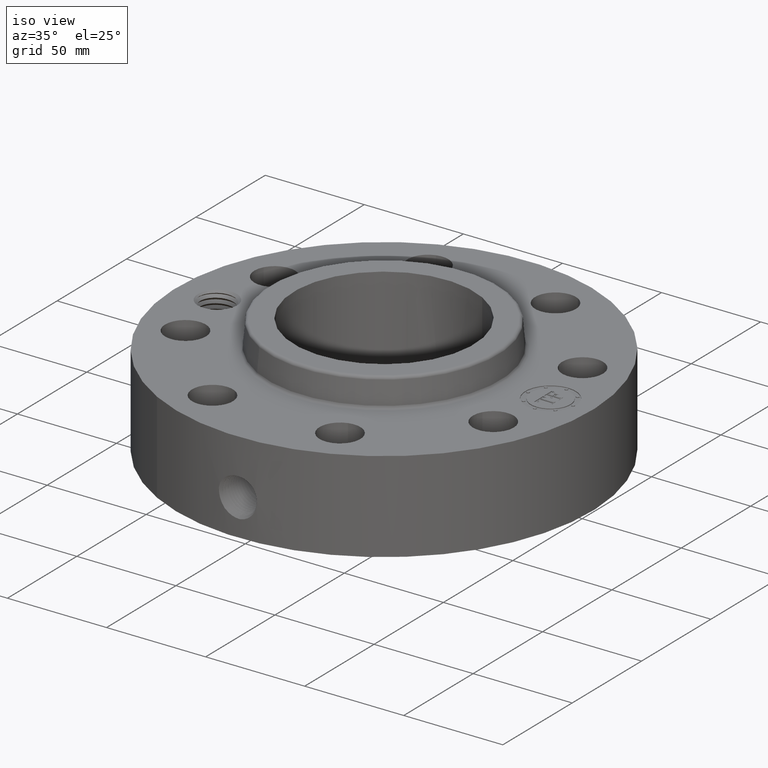
[diagram: clean part render]
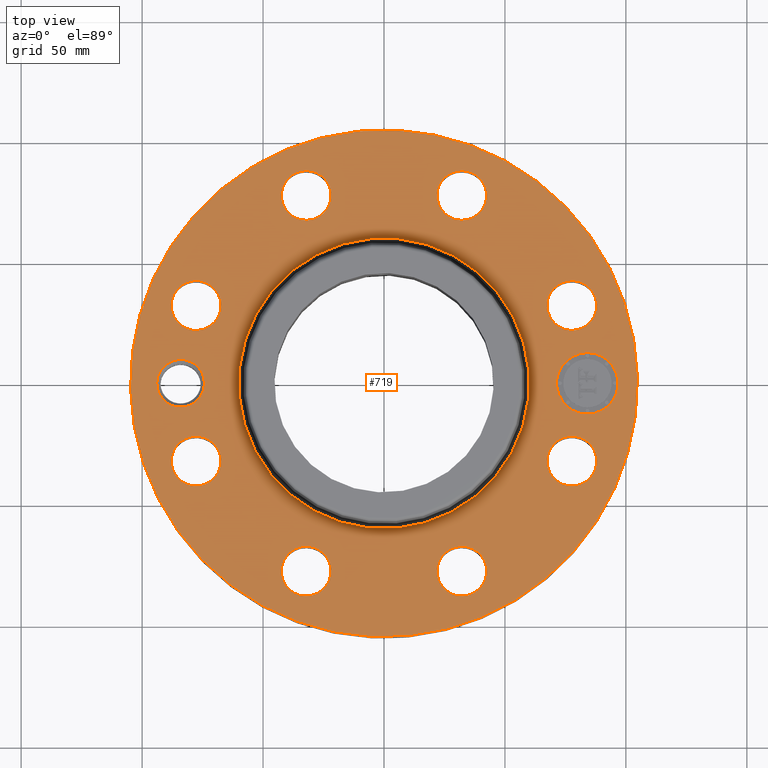
[diagram: tour spotlight — one face highlighted and labeled with its STEP entity id]
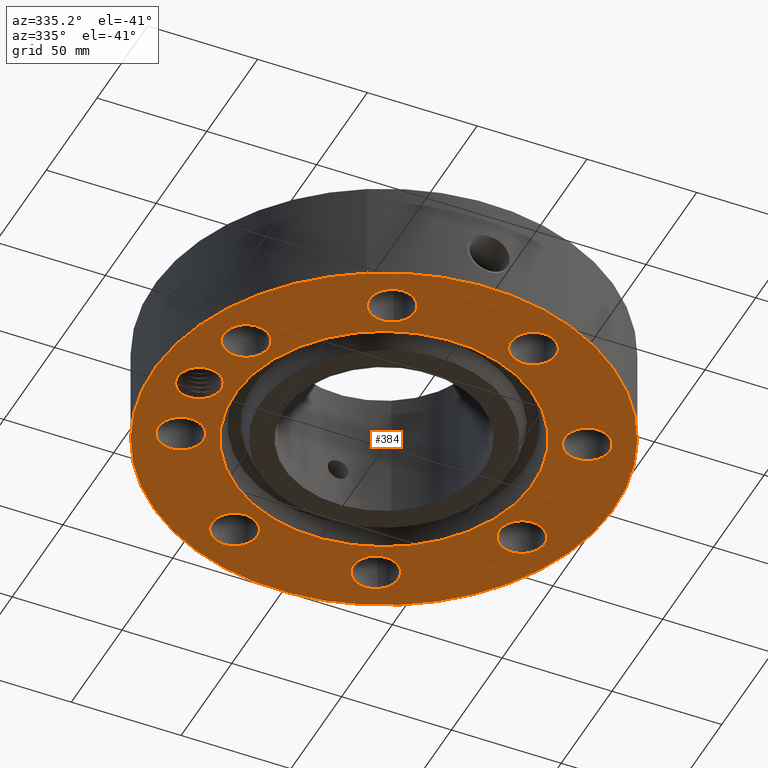
[diagram: tour spotlight — one face highlighted and labeled with its STEP entity id]
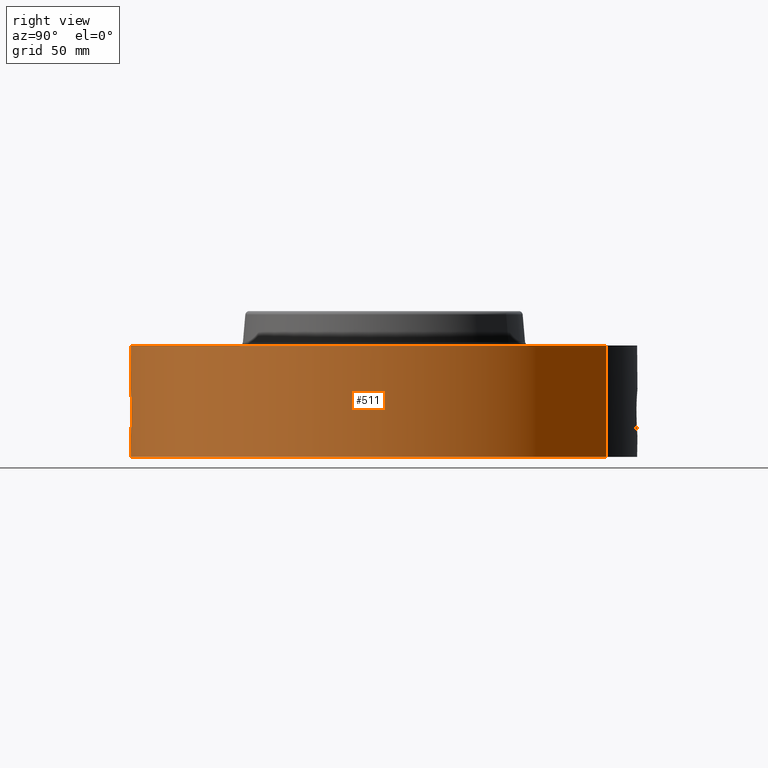
[diagram: tour spotlight — one face highlighted and labeled with its STEP entity id]
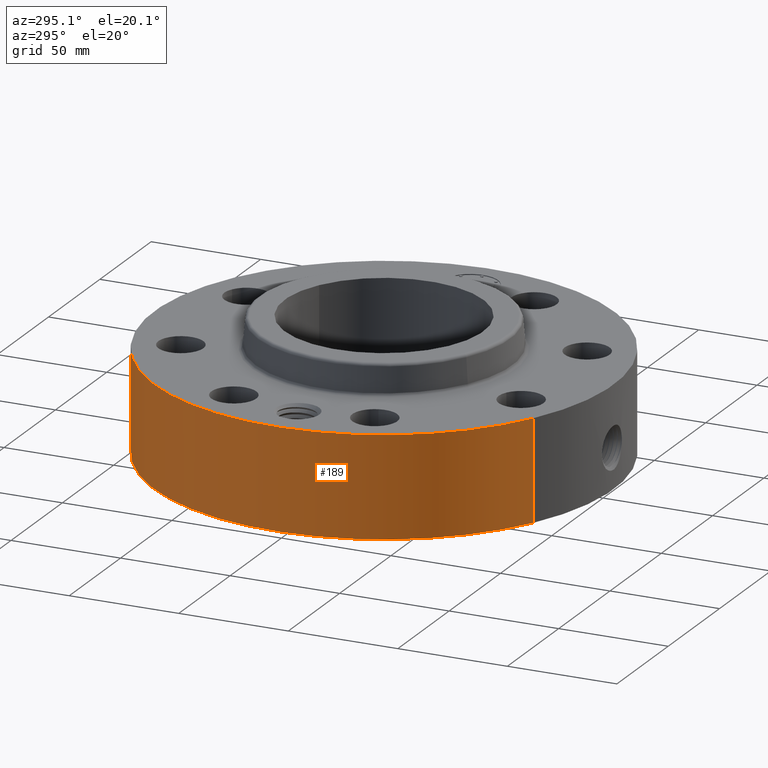
[diagram: tour spotlight — one face highlighted and labeled with its STEP entity id]
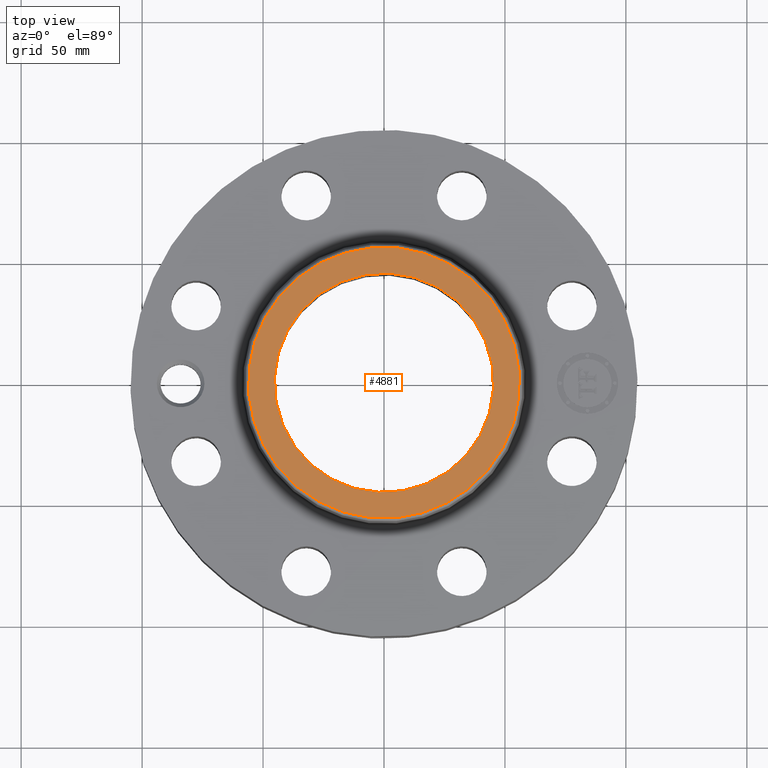
[diagram: tour spotlight — one face highlighted and labeled with its STEP entity id]
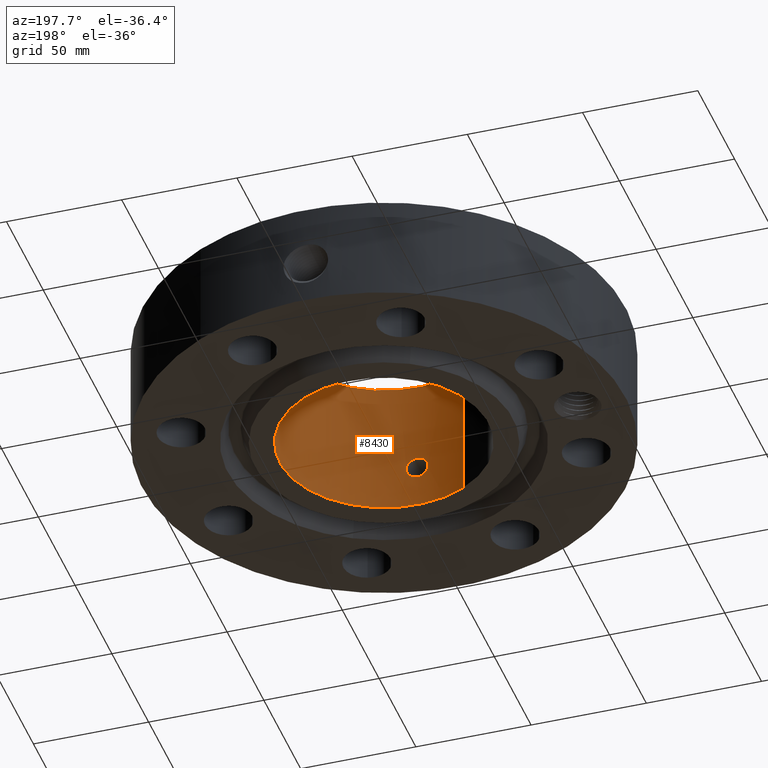
[diagram: tour spotlight — one face highlighted and labeled with its STEP entity id]
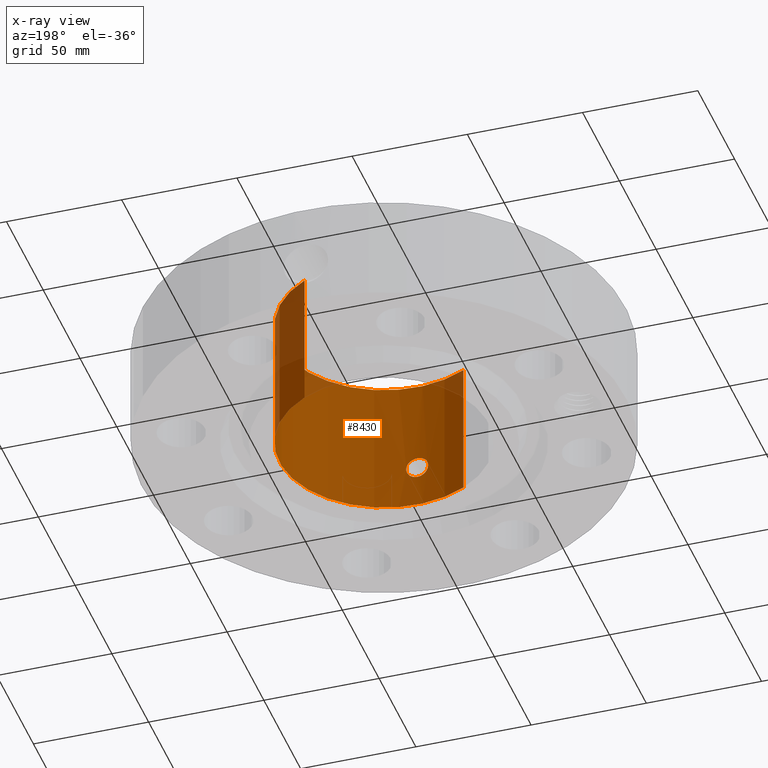
[diagram: x-ray of the same camera — body ghosted, this tour face saturated]
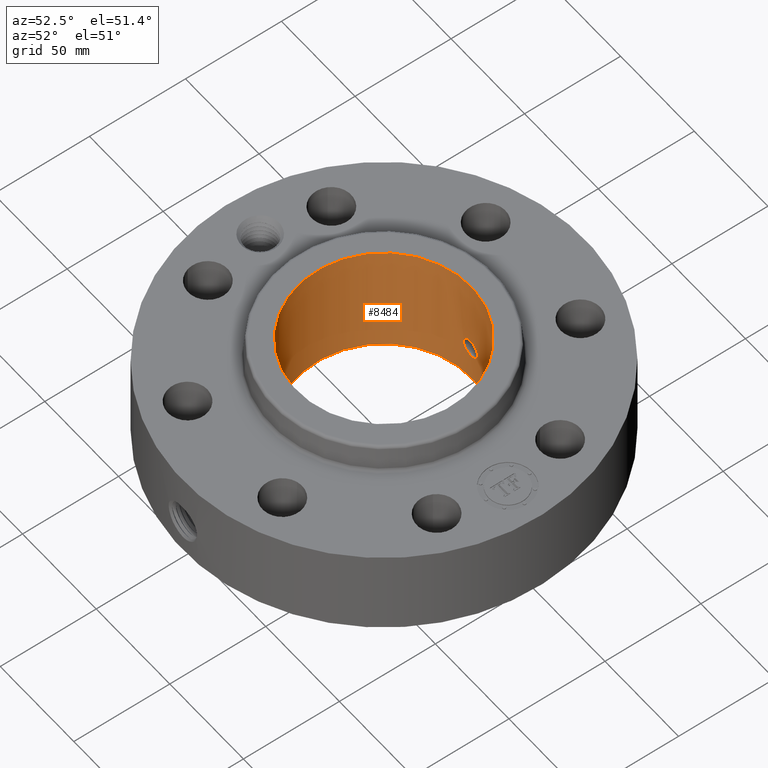
[diagram: tour spotlight — one face highlighted and labeled with its STEP entity id]
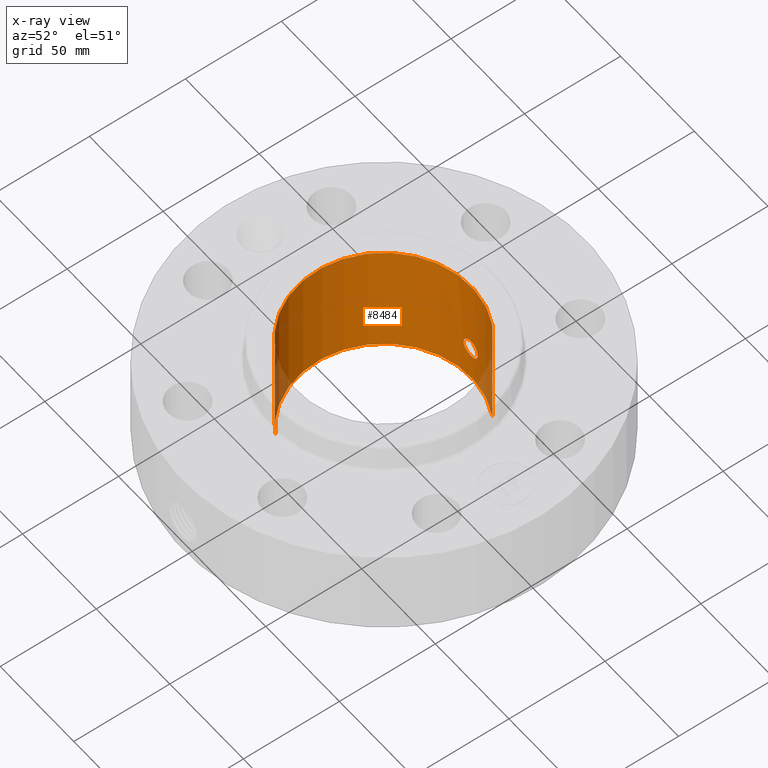
[diagram: x-ray of the same camera — body ghosted, this tour face saturated]
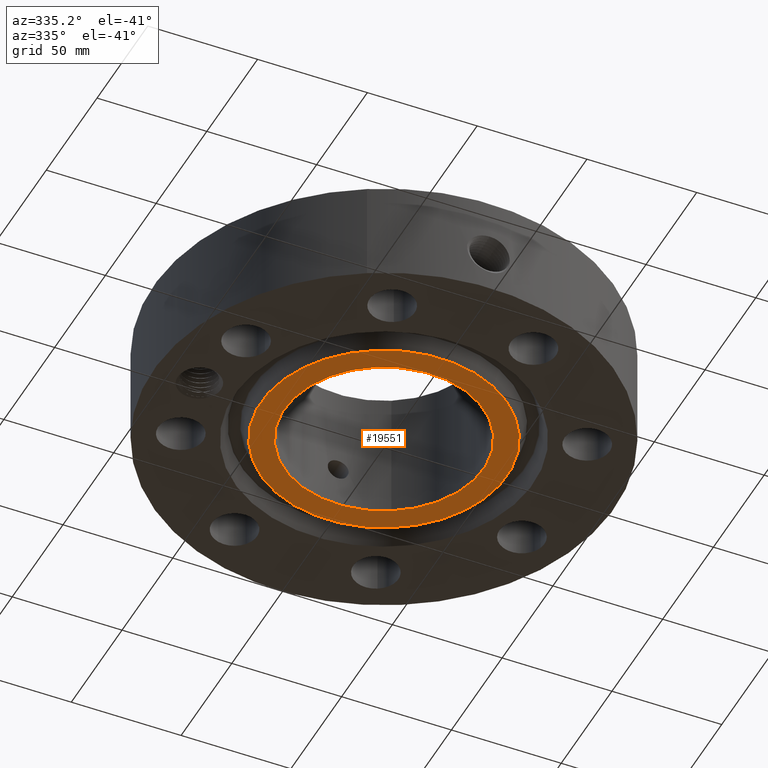
[diagram: tour spotlight — one face highlighted and labeled with its STEP entity id]
A machine part: a face-by-face anatomy tour. The part has 793 B-rep faces; the first image is the clean iso view, then the 8 largest visible faces are spotlighted one at a time (largest first), each with its STEP entity span.

Face 1 — top view, entity #719. In plain terms, the highlighted planar face has unit normal (0, 0, -1).
Definition (entity closure, byte-faithful):
#58=AXIS2_PLACEMENT_3D('Circle Axis2P3D',#56,#57,$) ;
#387=AXIS2_PLACEMENT_3D('Circle Axis2P3D',#385,#386,$) ;
#515=AXIS2_PLACEMENT_3D('Plane Axis2P3D',#512,#513,#514) ;
#523=AXIS2_PLACEMENT_3D('Circle Axis2P3D',#521,#522,$) ;
#532=AXIS2_PLACEMENT_3D('Circle Axis2P3D',#530,#531,$) ;
#541=AXIS2_PLACEMENT_3D('Circle Axis2P3D',#539,#540,$) ;
#550=AXIS2_PLACEMENT_3D('Circle Axis2P3D',#548,#549,$) ;
#559=AXIS2_PLACEMENT_3D('Circle Axis2P3D',#557,#558,$) ;
#568=AXIS2_PLACEMENT_3D('Circle Axis2P3D',#566,#567,$) ;
#577=AXIS2_PLACEMENT_3D('Circle Axis2P3D',#575,#576,$) ;
#586=AXIS2_PLACEMENT_3D('Circle Axis2P3D',#584,#585,$) ;
#595=AXIS2_PLACEMENT_3D('Circle Axis2P3D',#593,#594,$) ;
#604=AXIS2_PLACEMENT_3D('Circle Axis2P3D',#602,#603,$) ;
#613=AXIS2_PLACEMENT_3D('Circle Axis2P3D',#611,#612,$) ;
#622=AXIS2_PLACEMENT_3D('Circle Axis2P3D',#620,#621,$) ;
#631=AXIS2_PLACEMENT_3D('Circle Axis2P3D',#629,#630,$) ;
#640=AXIS2_PLACEMENT_3D('Circle Axis2P3D',#638,#639,$) ;
#649=AXIS2_PLACEMENT_3D('Circle Axis2P3D',#647,#648,$) ;
#658=AXIS2_PLACEMENT_3D('Circle Axis2P3D',#656,#657,$) ;
#667=AXIS2_PLACEMENT_3D('Circle Axis2P3D',#665,#666,$) ;
#676=AXIS2_PLACEMENT_3D('Circle Axis2P3D',#674,#675,$) ;
#685=AXIS2_PLACEMENT_3D('Circle Axis2P3D',#683,#684,$) ;
#694=AXIS2_PLACEMENT_3D('Circle Axis2P3D',#692,#693,$) ;
#703=AXIS2_PLACEMENT_3D('Circle Axis2P3D',#701,#702,$) ;
#712=AXIS2_PLACEMENT_3D('Circle Axis2P3D',#710,#711,$) ;
#53=CARTESIAN_POINT('Vertex',(-1.97763034675,-3.62002806781,1.81300000001)) ;
#56=CARTESIAN_POINT('Axis2P3D Location',(0.,7.99652833788E-018,1.81300000001)) ;
#60=CARTESIAN_POINT('Vertex',(1.97763034675,3.62002806781,1.81300000001)) ;
#385=CARTESIAN_POINT('Axis2P3D Location',(0.,7.99652833788E-018,1.81300000001)) ;
#512=CARTESIAN_POINT('Axis2P3D Location',(0.,4.12500000002,1.81300000001)) ;
#521=CARTESIAN_POINT('Axis2P3D Location',(-3.31000000001,5.59482469102E-016,1.81300000001)) ;
#525=CARTESIAN_POINT('Vertex',(-3.65061173185,0.186077037172,1.81300000001)) ;
#527=CARTESIAN_POINT('Vertex',(-2.96938826818,-0.186077037172,1.81300000001)) ;
#530=CARTESIAN_POINT('Axis2P3D Location',(-3.31000000001,5.59482469102E-016,1.81300000001)) ;
#539=CARTESIAN_POINT('Axis2P3D Location',(3.05804125262,-1.26668216113,1.81300000001)) ;
#543=CARTESIAN_POINT('Vertex',(2.70262031506,-1.072514818,1.81300000001)) ;
#545=CARTESIAN_POINT('Vertex',(3.41346219019,-1.46084950427,1.81300000001)) ;
#548=CARTESIAN_POINT('Axis2P3D Location',(3.05804125262,-1.26668216113,1.81300000001)) ;
#557=CARTESIAN_POINT('Axis2P3D Location',(0.,0.,1.81300000001)) ;
#561=CARTESIAN_POINT('Vertex',(-1.13383174818,-2.07546509353,1.81300000001)) ;
#563=CARTESIAN_POINT('Vertex',(1.13383174818,2.07546509353,1.81300000001)) ;
#566=CARTESIAN_POINT('Axis2P3D Location',(0.,0.,1.81300000001)) ;
#575=CARTESIAN_POINT('Axis2P3D Location',(1.26668216113,-3.05804125262,1.81300000001)) ;
#579=CARTESIAN_POINT('Vertex',(1.38070567125,-3.44665885277,1.81300000001)) ;
#581=CARTESIAN_POINT('Vertex',(1.15265865102,-2.66942365248,1.81300000001)) ;
#584=CARTESIAN_POINT('Axis2P3D Location',(1.26668216113,-3.05804125262,1.81300000001)) ;
#593=CARTESIAN_POINT('Axis2P3D Location',(-1.26668216113,-3.05804125262,1.81300000001)) ;
#597=CARTESIAN_POINT('Vertex',(-1.46084950427,-3.41346219019,1.81300000001)) ;
#599=CARTESIAN_POINT('Vertex',(-1.072514818,-2.70262031506,1.81300000001)) ;
#602=CARTESIAN_POINT('Axis2P3D Location',(-1.26668216113,-3.05804125262,1.81300000001)) ;
#611=CARTESIAN_POINT('Axis2P3D Location',(-3.05804125262,-1.26668216113,1.81300000001)) ;
#615=CARTESIAN_POINT('Vertex',(-3.44665885277,-1.38070567125,1.81300000001)) ;
#617=CARTESIAN_POINT('Vertex',(-2.66942365248,-1.15265865102,1.81300000001)) ;
#620=CARTESIAN_POINT('Axis2P3D Location',(-3.05804125262,-1.26668216113,1.81300000001)) ;
#629=CARTESIAN_POINT('Axis2P3D Location',(-3.05804125262,1.26668216113,1.81300000001)) ;
#633=CARTESIAN_POINT('Vertex',(-3.41346219019,1.46084950427,1.81300000001)) ;
#635=CARTESIAN_POINT('Vertex',(-2.70262031506,1.072514818,1.81300000001)) ;
#638=CARTESIAN_POINT('Axis2P3D Location',(-3.05804125262,1.26668216113,1.81300000001)) ;
#647=CARTESIAN_POINT('Axis2P3D Location',(-1.26668216113,3.05804125262,1.81300000001)) ;
#651=CARTESIAN_POINT('Vertex',(-1.38070567125,3.44665885277,1.81300000001)) ;
#653=CARTESIAN_POINT('Vertex',(-1.15265865102,2.66942365248,1.81300000001)) ;
#656=CARTESIAN_POINT('Axis2P3D Location',(-1.26668216113,3.05804125262,1.81300000001)) ;
#665=CARTESIAN_POINT('Axis2P3D Location',(1.26668216113,3.05804125262,1.81300000001)) ;
#669=CARTESIAN_POINT('Vertex',(1.46084950427,3.41346219019,1.81300000001)) ;
#671=CARTESIAN_POINT('Vertex',(1.072514818,2.70262031506,1.81300000001)) ;
#674=CARTESIAN_POINT('Axis2P3D Location',(1.26668216113,3.05804125262,1.81300000001)) ;
#683=CARTESIAN_POINT('Axis2P3D Location',(3.05804125262,1.26668216113,1.81300000001)) ;
#687=CARTESIAN_POINT('Vertex',(3.44665885277,1.38070567125,1.81300000001)) ;
#689=CARTESIAN_POINT('Vertex',(2.66942365248,1.15265865102,1.81300000001)) ;
#692=CARTESIAN_POINT('Axis2P3D Location',(3.05804125262,1.26668216113,1.81300000001)) ;
#701=CARTESIAN_POINT('Axis2P3D Location',(3.31000000001,0.,1.81300000001)) ;
#705=CARTESIAN_POINT('Vertex',(3.31000000001,0.499999995002,1.81300000001)) ;
#707=CARTESIAN_POINT('Vertex',(3.31000000001,-0.499999995002,1.81300000001)) ;
#710=CARTESIAN_POINT('Axis2P3D Location',(3.31000000001,0.,1.81300000001)) ;
#57=DIRECTION('Axis2P3D Direction',(0.,0.,-0.0393700787402)) ;
#386=DIRECTION('Axis2P3D Direction',(0.,0.,-0.0393700787402)) ;
#513=DIRECTION('Axis2P3D Direction',(0.,0.,-0.0393700787402)) ;
#514=DIRECTION('Axis2P3D XDirection',(0.0393700787402,0.,0.)) ;
#522=DIRECTION('Axis2P3D Direction',(0.,0.,-0.0393700787402)) ;
#531=DIRECTION('Axis2P3D Direction',(0.,0.,-0.0393700787402)) ;
#540=DIRECTION('Axis2P3D Direction',(0.,0.,-0.0393700787402)) ;
#549=DIRECTION('Axis2P3D Direction',(0.,0.,-0.0393700787402)) ;
#558=DIRECTION('Axis2P3D Direction',(0.,0.,-0.0393700787402)) ;
#567=DIRECTION('Axis2P3D Direction',(0.,0.,-0.0393700787402)) ;
#576=DIRECTION('Axis2P3D Direction',(0.,0.,-0.0393700787402)) ;
#585=DIRECTION('Axis2P3D Direction',(0.,0.,-0.0393700787402)) ;
#594=DIRECTION('Axis2P3D Direction',(0.,0.,-0.0393700787402)) ;
#603=DIRECTION('Axis2P3D Direction',(0.,0.,-0.0393700787402)) ;
#612=DIRECTION('Axis2P3D Direction',(0.,0.,-0.0393700787402)) ;
#621=DIRECTION('Axis2P3D Direction',(0.,0.,-0.0393700787402)) ;
#630=DIRECTION('Axis2P3D Direction',(0.,0.,-0.0393700787402)) ;
#639=DIRECTION('Axis2P3D Direction',(0.,0.,-0.0393700787402)) ;
#648=DIRECTION('Axis2P3D Direction',(0.,0.,-0.0393700787402)) ;
#657=DIRECTION('Axis2P3D Direction',(0.,0.,-0.0393700787402)) ;
#666=DIRECTION('Axis2P3D Direction',(0.,0.,-0.0393700787402)) ;
#675=DIRECTION('Axis2P3D Direction',(0.,0.,-0.0393700787402)) ;
#684=DIRECTION('Axis2P3D Direction',(0.,0.,-0.0393700787402)) ;
#693=DIRECTION('Axis2P3D Direction',(0.,0.,-0.0393700787402)) ;
#702=DIRECTION('Axis2P3D Direction',(0.,0.,-0.0393700787402)) ;
#711=DIRECTION('Axis2P3D Direction',(0.,0.,-0.0393700787402)) ;
#518=ORIENTED_EDGE('',*,*,#389,.F.) ;
#519=ORIENTED_EDGE('',*,*,#62,.F.) ;
#536=ORIENTED_EDGE('',*,*,#529,.T.) ;
#537=ORIENTED_EDGE('',*,*,#534,.T.) ;
#554=ORIENTED_EDGE('',*,*,#547,.T.) ;
#555=ORIENTED_EDGE('',*,*,#552,.T.) ;
#572=ORIENTED_EDGE('',*,*,#565,.T.) ;
#573=ORIENTED_EDGE('',*,*,#570,.T.) ;
#590=ORIENTED_EDGE('',*,*,#583,.T.) ;
#591=ORIENTED_EDGE('',*,*,#588,.T.) ;
#608=ORIENTED_EDGE('',*,*,#601,.T.) ;
#609=ORIENTED_EDGE('',*,*,#606,.T.) ;
#626=ORIENTED_EDGE('',*,*,#619,.T.) ;
#627=ORIENTED_EDGE('',*,*,#624,.T.) ;
#644=ORIENTED_EDGE('',*,*,#637,.T.) ;
#645=ORIENTED_EDGE('',*,*,#642,.T.) ;
#662=ORIENTED_EDGE('',*,*,#655,.T.) ;
#663=ORIENTED_EDGE('',*,*,#660,.T.) ;
#680=ORIENTED_EDGE('',*,*,#673,.T.) ;
#681=ORIENTED_EDGE('',*,*,#678,.T.) ;
#698=ORIENTED_EDGE('',*,*,#691,.T.) ;
#699=ORIENTED_EDGE('',*,*,#696,.T.) ;
#716=ORIENTED_EDGE('',*,*,#709,.T.) ;
#717=ORIENTED_EDGE('',*,*,#714,.T.) ;
#538=FACE_BOUND('',#535,.T.) ;
#556=FACE_BOUND('',#553,.T.) ;
#574=FACE_BOUND('',#571,.T.) ;
#592=FACE_BOUND('',#589,.T.) ;
#610=FACE_BOUND('',#607,.T.) ;
#628=FACE_BOUND('',#625,.T.) ;
#646=FACE_BOUND('',#643,.T.) ;
#664=FACE_BOUND('',#661,.T.) ;
#682=FACE_BOUND('',#679,.T.) ;
#700=FACE_BOUND('',#697,.T.) ;
#718=FACE_BOUND('',#715,.T.) ;
#719=ADVANCED_FACE('PartBody',(#520,#538,#556,#574,#592,#610,#628,#646,#664,#682,#700,#718),#516,.F.) ;
#59=CIRCLE('generated circle',#58,4.12500000002) ;
#388=CIRCLE('generated circle',#387,4.12500000002) ;
#524=CIRCLE('generated circle',#523,0.388125000002) ;
#533=CIRCLE('generated circle',#532,0.388125000002) ;
#542=CIRCLE('generated circle',#541,0.405000000002) ;
#551=CIRCLE('generated circle',#550,0.405000000002) ;
#560=CIRCLE('generated circle',#559,2.36497987045) ;
#569=CIRCLE('generated circle',#568,2.36497987045) ;
#578=CIRCLE('generated circle',#577,0.405000000002) ;
#587=CIRCLE('generated circle',#586,0.405000000002) ;
#596=CIRCLE('generated circle',#595,0.405000000002) ;
#605=CIRCLE('generated circle',#604,0.405000000002) ;
#614=CIRCLE('generated circle',#613,0.405000000002) ;
#623=CIRCLE('generated circle',#622,0.405000000002) ;
#632=CIRCLE('generated circle',#631,0.405000000002) ;
#641=CIRCLE('generated circle',#640,0.405000000002) ;
#650=CIRCLE('generated circle',#649,0.405000000002) ;
#659=CIRCLE('generated circle',#658,0.405000000002) ;
#668=CIRCLE('generated circle',#667,0.405000000002) ;
#677=CIRCLE('generated circle',#676,0.405000000002) ;
#686=CIRCLE('generated circle',#685,0.405000000002) ;
#695=CIRCLE('generated circle',#694,0.405000000002) ;
#704=CIRCLE('generated circle',#703,0.499999995002) ;
#713=CIRCLE('generated circle',#712,0.499999995002) ;
#62=EDGE_CURVE('',#54,#61,#59,.T.) ;
#389=EDGE_CURVE('',#61,#54,#388,.T.) ;
#529=EDGE_CURVE('',#526,#528,#524,.T.) ;
#534=EDGE_CURVE('',#528,#526,#533,.T.) ;
#547=EDGE_CURVE('',#544,#546,#542,.T.) ;
#552=EDGE_CURVE('',#546,#544,#551,.T.) ;
#565=EDGE_CURVE('',#562,#564,#560,.T.) ;
#570=EDGE_CURVE('',#564,#562,#569,.T.) ;
#583=EDGE_CURVE('',#580,#582,#578,.T.) ;
#588=EDGE_CURVE('',#582,#580,#587,.T.) ;
#601=EDGE_CURVE('',#598,#600,#596,.T.) ;
#606=EDGE_CURVE('',#600,#598,#605,.T.) ;
#619=EDGE_CURVE('',#616,#618,#614,.T.) ;
#624=EDGE_CURVE('',#618,#616,#623,.T.) ;
#637=EDGE_CURVE('',#634,#636,#632,.T.) ;
#642=EDGE_CURVE('',#636,#634,#641,.T.) ;
#655=EDGE_CURVE('',#652,#654,#650,.T.) ;
#660=EDGE_CURVE('',#654,#652,#659,.T.) ;
#673=EDGE_CURVE('',#670,#672,#668,.T.) ;
#678=EDGE_CURVE('',#672,#670,#677,.T.) ;
#691=EDGE_CURVE('',#688,#690,#686,.T.) ;
#696=EDGE_CURVE('',#690,#688,#695,.T.) ;
#709=EDGE_CURVE('',#706,#708,#704,.T.) ;
#714=EDGE_CURVE('',#708,#706,#713,.T.) ;
#517=EDGE_LOOP('',(#518,#519)) ;
#535=EDGE_LOOP('',(#536,#537)) ;
#553=EDGE_LOOP('',(#554,#555)) ;
#571=EDGE_LOOP('',(#572,#573)) ;
#589=EDGE_LOOP('',(#590,#591)) ;
#607=EDGE_LOOP('',(#608,#609)) ;
#625=EDGE_LOOP('',(#626,#627)) ;
#643=EDGE_LOOP('',(#644,#645)) ;
#661=EDGE_LOOP('',(#662,#663)) ;
#679=EDGE_LOOP('',(#680,#681)) ;
#697=EDGE_LOOP('',(#698,#699)) ;
#715=EDGE_LOOP('',(#716,#717)) ;
#520=FACE_OUTER_BOUND('',#517,.T.) ;
#516=PLANE('',#515) ;
#54=VERTEX_POINT('',#53) ;
#61=VERTEX_POINT('',#60) ;
#526=VERTEX_POINT('',#525) ;
#528=VERTEX_POINT('',#527) ;
#544=VERTEX_POINT('',#543) ;
#546=VERTEX_POINT('',#545) ;
#562=VERTEX_POINT('',#561) ;
#564=VERTEX_POINT('',#563) ;
#580=VERTEX_POINT('',#579) ;
#582=VERTEX_POINT('',#581) ;
#598=VERTEX_POINT('',#597) ;
#600=VERTEX_POINT('',#599) ;
#616=VERTEX_POINT('',#615) ;
#618=VERTEX_POINT('',#617) ;
#634=VERTEX_POINT('',#633) ;
#636=VERTEX_POINT('',#635) ;
#652=VERTEX_POINT('',#651) ;
#654=VERTEX_POINT('',#653) ;
#670=VERTEX_POINT('',#669) ;
#672=VERTEX_POINT('',#671) ;
#688=VERTEX_POINT('',#687) ;
#690=VERTEX_POINT('',#689) ;
#706=VERTEX_POINT('',#705) ;
#708=VERTEX_POINT('',#707) ;

Face 2 — auxiliary view, entity #384. In plain terms, the highlighted planar face has unit normal (0, 0, -1).
Definition (entity closure, byte-faithful):
#42=AXIS2_PLACEMENT_3D('Circle Axis2P3D',#40,#41,$) ;
#193=AXIS2_PLACEMENT_3D('Plane Axis2P3D',#190,#191,#192) ;
#197=AXIS2_PLACEMENT_3D('Circle Axis2P3D',#195,#196,$) ;
#206=AXIS2_PLACEMENT_3D('Circle Axis2P3D',#204,#205,$) ;
#215=AXIS2_PLACEMENT_3D('Circle Axis2P3D',#213,#214,$) ;
#224=AXIS2_PLACEMENT_3D('Circle Axis2P3D',#222,#223,$) ;
#233=AXIS2_PLACEMENT_3D('Circle Axis2P3D',#231,#232,$) ;
#242=AXIS2_PLACEMENT_3D('Circle Axis2P3D',#240,#241,$) ;
#251=AXIS2_PLACEMENT_3D('Circle Axis2P3D',#249,#250,$) ;
#260=AXIS2_PLACEMENT_3D('Circle Axis2P3D',#258,#259,$) ;
#269=AXIS2_PLACEMENT_3D('Circle Axis2P3D',#267,#268,$) ;
#278=AXIS2_PLACEMENT_3D('Circle Axis2P3D',#276,#277,$) ;
#287=AXIS2_PLACEMENT_3D('Circle Axis2P3D',#285,#286,$) ;
#296=AXIS2_PLACEMENT_3D('Circle Axis2P3D',#294,#295,$) ;
#305=AXIS2_PLACEMENT_3D('Circle Axis2P3D',#303,#304,$) ;
#314=AXIS2_PLACEMENT_3D('Circle Axis2P3D',#312,#313,$) ;
#323=AXIS2_PLACEMENT_3D('Circle Axis2P3D',#321,#322,$) ;
#332=AXIS2_PLACEMENT_3D('Circle Axis2P3D',#330,#331,$) ;
#341=AXIS2_PLACEMENT_3D('Circle Axis2P3D',#339,#340,$) ;
#350=AXIS2_PLACEMENT_3D('Circle Axis2P3D',#348,#349,$) ;
#359=AXIS2_PLACEMENT_3D('Circle Axis2P3D',#357,#358,$) ;
#368=AXIS2_PLACEMENT_3D('Circle Axis2P3D',#366,#367,$) ;
#377=AXIS2_PLACEMENT_3D('Circle Axis2P3D',#375,#376,$) ;
#40=CARTESIAN_POINT('Axis2P3D Location',(0.,7.99652833788E-018,2.79741234551E-016)) ;
#44=CARTESIAN_POINT('Vertex',(-1.97763034675,-3.62002806781,2.79741234551E-016)) ;
#46=CARTESIAN_POINT('Vertex',(1.97763034675,3.62002806781,2.79741234551E-016)) ;
#190=CARTESIAN_POINT('Axis2P3D Location',(0.,1.78500000001,0.)) ;
#195=CARTESIAN_POINT('Axis2P3D Location',(0.,0.,0.)) ;
#204=CARTESIAN_POINT('Axis2P3D Location',(-3.31000000001,0.,0.)) ;
#208=CARTESIAN_POINT('Vertex',(-2.96938826818,-0.186077037172,0.)) ;
#210=CARTESIAN_POINT('Vertex',(-3.65061173185,0.186077037172,0.)) ;
#213=CARTESIAN_POINT('Axis2P3D Location',(-3.31000000001,0.,0.)) ;
#222=CARTESIAN_POINT('Axis2P3D Location',(3.05804125262,-1.26668216113,0.)) ;
#226=CARTESIAN_POINT('Vertex',(3.41346219019,-1.46084950427,0.)) ;
#228=CARTESIAN_POINT('Vertex',(2.70262031506,-1.072514818,0.)) ;
#231=CARTESIAN_POINT('Axis2P3D Location',(3.05804125262,-1.26668216113,0.)) ;
#240=CARTESIAN_POINT('Axis2P3D Location',(1.26668216113,-3.05804125262,0.)) ;
#244=CARTESIAN_POINT('Vertex',(1.15265865102,-2.66942365248,0.)) ;
#246=CARTESIAN_POINT('Vertex',(1.38070567125,-3.44665885277,0.)) ;
#249=CARTESIAN_POINT('Axis2P3D Location',(1.26668216113,-3.05804125262,0.)) ;
#258=CARTESIAN_POINT('Axis2P3D Location',(-1.26668216113,-3.05804125262,0.)) ;
#262=CARTESIAN_POINT('Vertex',(-1.072514818,-2.70262031506,0.)) ;
#264=CARTESIAN_POINT('Vertex',(-1.46084950427,-3.41346219019,0.)) ;
#267=CARTESIAN_POINT('Axis2P3D Location',(-1.26668216113,-3.05804125262,0.)) ;
#276=CARTESIAN_POINT('Axis2P3D Location',(-3.05804125262,-1.26668216113,0.)) ;
#280=CARTESIAN_POINT('Vertex',(-2.66942365248,-1.15265865102,0.)) ;
#282=CARTESIAN_POINT('Vertex',(-3.44665885277,-1.38070567125,0.)) ;
#285=CARTESIAN_POINT('Axis2P3D Location',(-3.05804125262,-1.26668216113,0.)) ;
#294=CARTESIAN_POINT('Axis2P3D Location',(-3.05804125262,1.26668216113,0.)) ;
#298=CARTESIAN_POINT('Vertex',(-2.70262031506,1.072514818,0.)) ;
#300=CARTESIAN_POINT('Vertex',(-3.41346219019,1.46084950427,0.)) ;
#303=CARTESIAN_POINT('Axis2P3D Location',(-3.05804125262,1.26668216113,0.)) ;
#312=CARTESIAN_POINT('Axis2P3D Location',(-1.26668216113,3.05804125262,0.)) ;
#316=CARTESIAN_POINT('Vertex',(-1.15265865102,2.66942365248,0.)) ;
#318=CARTESIAN_POINT('Vertex',(-1.38070567125,3.44665885277,0.)) ;
#321=CARTESIAN_POINT('Axis2P3D Location',(-1.26668216113,3.05804125262,0.)) ;
#330=CARTESIAN_POINT('Axis2P3D Location',(1.26668216113,3.05804125262,0.)) ;
#334=CARTESIAN_POINT('Vertex',(1.072514818,2.70262031506,0.)) ;
#336=CARTESIAN_POINT('Vertex',(1.46084950427,3.41346219019,0.)) ;
#339=CARTESIAN_POINT('Axis2P3D Location',(1.26668216113,3.05804125262,0.)) ;
#348=CARTESIAN_POINT('Axis2P3D Location',(3.05804125262,1.26668216113,0.)) ;
#352=CARTESIAN_POINT('Vertex',(2.66942365248,1.15265865102,0.)) ;
#354=CARTESIAN_POINT('Vertex',(3.44665885277,1.38070567125,0.)) ;
#357=CARTESIAN_POINT('Axis2P3D Location',(3.05804125262,1.26668216113,0.)) ;
#366=CARTESIAN_POINT('Axis2P3D Location',(-2.79741234551E-016,0.,0.)) ;
#370=CARTESIAN_POINT('Vertex',(1.28102503916,-2.34490060538,0.)) ;
#372=CARTESIAN_POINT('Vertex',(-1.28102503916,2.34490060538,0.)) ;
#375=CARTESIAN_POINT('Axis2P3D Location',(0.,5.59482469102E-016,0.)) ;
#41=DIRECTION('Axis2P3D Direction',(0.,0.,-0.0393700787402)) ;
#191=DIRECTION('Axis2P3D Direction',(0.,0.,-0.0393700787402)) ;
#192=DIRECTION('Axis2P3D XDirection',(0.0393700787402,0.,0.)) ;
#196=DIRECTION('Axis2P3D Direction',(0.,0.,-0.0393700787402)) ;
#205=DIRECTION('Axis2P3D Direction',(0.,0.,-0.0393700787402)) ;
#214=DIRECTION('Axis2P3D Direction',(0.,0.,-0.0393700787402)) ;
#223=DIRECTION('Axis2P3D Direction',(0.,0.,-0.0393700787402)) ;
#232=DIRECTION('Axis2P3D Direction',(0.,0.,-0.0393700787402)) ;
#241=DIRECTION('Axis2P3D Direction',(0.,0.,-0.0393700787402)) ;
#250=DIRECTION('Axis2P3D Direction',(0.,0.,-0.0393700787402)) ;
#259=DIRECTION('Axis2P3D Direction',(0.,0.,-0.0393700787402)) ;
#268=DIRECTION('Axis2P3D Direction',(0.,0.,-0.0393700787402)) ;
#277=DIRECTION('Axis2P3D Direction',(0.,0.,-0.0393700787402)) ;
#286=DIRECTION('Axis2P3D Direction',(0.,0.,-0.0393700787402)) ;
#295=DIRECTION('Axis2P3D Direction',(0.,0.,-0.0393700787402)) ;
#304=DIRECTION('Axis2P3D Direction',(0.,0.,-0.0393700787402)) ;
#313=DIRECTION('Axis2P3D Direction',(0.,0.,-0.0393700787402)) ;
#322=DIRECTION('Axis2P3D Direction',(0.,0.,-0.0393700787402)) ;
#331=DIRECTION('Axis2P3D Direction',(0.,0.,-0.0393700787402)) ;
#340=DIRECTION('Axis2P3D Direction',(0.,0.,-0.0393700787402)) ;
#349=DIRECTION('Axis2P3D Direction',(0.,0.,-0.0393700787402)) ;
#358=DIRECTION('Axis2P3D Direction',(0.,0.,-0.0393700787402)) ;
#367=DIRECTION('Axis2P3D Direction',(0.,0.,-0.0393700787402)) ;
#376=DIRECTION('Axis2P3D Direction',(0.,0.,-0.0393700787402)) ;
#201=ORIENTED_EDGE('',*,*,#48,.T.) ;
#202=ORIENTED_EDGE('',*,*,#199,.T.) ;
#219=ORIENTED_EDGE('',*,*,#212,.F.) ;
#220=ORIENTED_EDGE('',*,*,#217,.F.) ;
#237=ORIENTED_EDGE('',*,*,#230,.F.) ;
#238=ORIENTED_EDGE('',*,*,#235,.F.) ;
#255=ORIENTED_EDGE('',*,*,#248,.F.) ;
#256=ORIENTED_EDGE('',*,*,#253,.F.) ;
#273=ORIENTED_EDGE('',*,*,#266,.F.) ;
#274=ORIENTED_EDGE('',*,*,#271,.F.) ;
#291=ORIENTED_EDGE('',*,*,#284,.F.) ;
#292=ORIENTED_EDGE('',*,*,#289,.F.) ;
#309=ORIENTED_EDGE('',*,*,#302,.F.) ;
#310=ORIENTED_EDGE('',*,*,#307,.F.) ;
#327=ORIENTED_EDGE('',*,*,#320,.F.) ;
#328=ORIENTED_EDGE('',*,*,#325,.F.) ;
#345=ORIENTED_EDGE('',*,*,#338,.F.) ;
#346=ORIENTED_EDGE('',*,*,#343,.F.) ;
#363=ORIENTED_EDGE('',*,*,#356,.F.) ;
#364=ORIENTED_EDGE('',*,*,#361,.F.) ;
#381=ORIENTED_EDGE('',*,*,#374,.F.) ;
#382=ORIENTED_EDGE('',*,*,#379,.F.) ;
#221=FACE_BOUND('',#218,.T.) ;
#239=FACE_BOUND('',#236,.T.) ;
#257=FACE_BOUND('',#254,.T.) ;
#275=FACE_BOUND('',#272,.T.) ;
#293=FACE_BOUND('',#290,.T.) ;
#311=FACE_BOUND('',#308,.T.) ;
#329=FACE_BOUND('',#326,.T.) ;
#347=FACE_BOUND('',#344,.T.) ;
#365=FACE_BOUND('',#362,.T.) ;
#383=FACE_BOUND('',#380,.T.) ;
#384=ADVANCED_FACE('PartBody',(#203,#221,#239,#257,#275,#293,#311,#329,#347,#365,#383),#194,.T.) ;
#43=CIRCLE('generated circle',#42,4.12500000002) ;
#198=CIRCLE('generated circle',#197,4.12500000002) ;
#207=CIRCLE('generated circle',#206,0.388125000002) ;
#216=CIRCLE('generated circle',#215,0.388125000002) ;
#225=CIRCLE('generated circle',#224,0.405000000002) ;
#234=CIRCLE('generated circle',#233,0.405000000002) ;
#243=CIRCLE('generated circle',#242,0.405000000002) ;
#252=CIRCLE('generated circle',#251,0.405000000002) ;
#261=CIRCLE('generated circle',#260,0.405000000002) ;
#270=CIRCLE('generated circle',#269,0.405000000002) ;
#279=CIRCLE('generated circle',#278,0.405000000002) ;
#288=CIRCLE('generated circle',#287,0.405000000002) ;
#297=CIRCLE('generated circle',#296,0.405000000002) ;
#306=CIRCLE('generated circle',#305,0.405000000002) ;
#315=CIRCLE('generated circle',#314,0.405000000002) ;
#324=CIRCLE('generated circle',#323,0.405000000002) ;
#333=CIRCLE('generated circle',#332,0.405000000002) ;
#342=CIRCLE('generated circle',#341,0.405000000002) ;
#351=CIRCLE('generated circle',#350,0.405000000002) ;
#360=CIRCLE('generated circle',#359,0.405000000002) ;
#369=CIRCLE('generated circle',#368,2.67200000001) ;
#378=CIRCLE('generated circle',#377,2.67200000001) ;
#48=EDGE_CURVE('',#45,#47,#43,.T.) ;
#199=EDGE_CURVE('',#47,#45,#198,.T.) ;
#212=EDGE_CURVE('',#209,#211,#207,.T.) ;
#217=EDGE_CURVE('',#211,#209,#216,.T.) ;
#230=EDGE_CURVE('',#227,#229,#225,.T.) ;
#235=EDGE_CURVE('',#229,#227,#234,.T.) ;
#248=EDGE_CURVE('',#245,#247,#243,.T.) ;
#253=EDGE_CURVE('',#247,#245,#252,.T.) ;
#266=EDGE_CURVE('',#263,#265,#261,.T.) ;
#271=EDGE_CURVE('',#265,#263,#270,.T.) ;
#284=EDGE_CURVE('',#281,#283,#279,.T.) ;
#289=EDGE_CURVE('',#283,#281,#288,.T.) ;
#302=EDGE_CURVE('',#299,#301,#297,.T.) ;
#307=EDGE_CURVE('',#301,#299,#306,.T.) ;
#320=EDGE_CURVE('',#317,#319,#315,.T.) ;
#325=EDGE_CURVE('',#319,#317,#324,.T.) ;
#338=EDGE_CURVE('',#335,#337,#333,.T.) ;
#343=EDGE_CURVE('',#337,#335,#342,.T.) ;
#356=EDGE_CURVE('',#353,#355,#351,.T.) ;
#361=EDGE_CURVE('',#355,#353,#360,.T.) ;
#374=EDGE_CURVE('',#371,#373,#369,.T.) ;
#379=EDGE_CURVE('',#373,#371,#378,.T.) ;
#200=EDGE_LOOP('',(#201,#202)) ;
#218=EDGE_LOOP('',(#219,#220)) ;
#236=EDGE_LOOP('',(#237,#238)) ;
#254=EDGE_LOOP('',(#255,#256)) ;
#272=EDGE_LOOP('',(#273,#274)) ;
#290=EDGE_LOOP('',(#291,#292)) ;
#308=EDGE_LOOP('',(#309,#310)) ;
#326=EDGE_LOOP('',(#327,#328)) ;
#344=EDGE_LOOP('',(#345,#346)) ;
#362=EDGE_LOOP('',(#363,#364)) ;
#380=EDGE_LOOP('',(#381,#382)) ;
#203=FACE_OUTER_BOUND('',#200,.T.) ;
#194=PLANE('',#193) ;
#45=VERTEX_POINT('',#44) ;
#47=VERTEX_POINT('',#46) ;
#209=VERTEX_POINT('',#208) ;
#211=VERTEX_POINT('',#210) ;
#227=VERTEX_POINT('',#226) ;
#229=VERTEX_POINT('',#228) ;
#245=VERTEX_POINT('',#244) ;
#247=VERTEX_POINT('',#246) ;
#263=VERTEX_POINT('',#262) ;
#265=VERTEX_POINT('',#264) ;
#281=VERTEX_POINT('',#280) ;
#283=VERTEX_POINT('',#282) ;
#299=VERTEX_POINT('',#298) ;
#301=VERTEX_POINT('',#300) ;
#317=VERTEX_POINT('',#316) ;
#319=VERTEX_POINT('',#318) ;
#335=VERTEX_POINT('',#334) ;
#337=VERTEX_POINT('',#336) ;
#353=VERTEX_POINT('',#352) ;
#355=VERTEX_POINT('',#354) ;
#371=VERTEX_POINT('',#370) ;
#373=VERTEX_POINT('',#372) ;

Face 3 — right view, entity #511. In plain terms, the highlighted cylindrical surface (partial cylindrical patch) has radius 104.775 mm, axis along (0, 0, -1).
Definition (entity closure, byte-faithful):
#38=AXIS2_PLACEMENT_3D('Cylinder Axis2P3D',#35,#36,#37) ;
#197=AXIS2_PLACEMENT_3D('Circle Axis2P3D',#195,#196,$) ;
#387=AXIS2_PLACEMENT_3D('Circle Axis2P3D',#385,#386,$) ;
#35=CARTESIAN_POINT('Axis2P3D Location',(0.,7.99652833788E-018,1.1865)) ;
#44=CARTESIAN_POINT('Vertex',(-1.97763034675,-3.62002806781,2.79741234551E-016)) ;
#46=CARTESIAN_POINT('Vertex',(1.97763034675,3.62002806781,2.79741234551E-016)) ;
#49=CARTESIAN_POINT('Line Origine',(-1.97763034675,-3.62002806781,0.906500000004)) ;
#53=CARTESIAN_POINT('Vertex',(-1.97763034675,-3.62002806781,1.81300000001)) ;
#60=CARTESIAN_POINT('Vertex',(1.97763034675,3.62002806781,1.81300000001)) ;
#63=CARTESIAN_POINT('Line Origine',(1.97763034675,3.62002806781,0.906500000004)) ;
#195=CARTESIAN_POINT('Axis2P3D Location',(0.,0.,0.)) ;
#385=CARTESIAN_POINT('Axis2P3D Location',(0.,7.99652833788E-018,1.81300000001)) ;
#397=CARTESIAN_POINT('Control Point',(0.0708237445657,-4.12439195486,1.09694488906)) ;
#398=CARTESIAN_POINT('Control Point',(0.047774158296,-4.1247877606,1.10166279614)) ;
#399=CARTESIAN_POINT('Control Point',(0.0242486164638,-4.12499584538,1.10407066233)) ;
#400=CARTESIAN_POINT('Control Point',(0.000717367610547,-4.12499993764,1.10411849621)) ;
#401=CARTESIAN_POINT('Vertex',(0.0707906539045,-4.12439279631,1.09695198078)) ;
#403=CARTESIAN_POINT('Vertex',(0.000717115501111,-4.12499993768,1.10411850626)) ;
#407=CARTESIAN_POINT('Control Point',(0.0707905104107,-4.12439252542,1.09695129721)) ;
#408=CARTESIAN_POINT('Control Point',(0.105532809477,-4.12379621334,1.09076595761)) ;
#409=CARTESIAN_POINT('Control Point',(0.139240030293,-4.12276503843,1.07859017267)) ;
#410=CARTESIAN_POINT('Control Point',(0.170106274733,-4.12149109612,1.06141106894)) ;
#411=CARTESIAN_POINT('Vertex',(0.170106274733,-4.12149109612,1.06141106894)) ;
#415=CARTESIAN_POINT('Control Point',(0.170106274733,-4.12149109612,1.06141106894)) ;
#416=CARTESIAN_POINT('Control Point',(0.189944594202,-4.1206723093,1.0503697337)) ;
#417=CARTESIAN_POINT('Control Point',(0.208623296466,-4.11975704374,1.03728198267)) ;
#418=CARTESIAN_POINT('Control Point',(0.225824740993,-4.11881392958,1.02251883288)) ;
#419=CARTESIAN_POINT('Vertex',(0.225824957479,-4.11881412254,1.02251908233)) ;
#423=CARTESIAN_POINT('Control Point',(0.351866715743,-4.10996530575,0.785464207791)) ;
#424=CARTESIAN_POINT('Control Point',(0.344978882639,-4.11055499424,0.853986425454)) ;
#425=CARTESIAN_POINT('Control Point',(0.32031434276,-4.11268400509,0.920774518543)) ;
#426=CARTESIAN_POINT('Control Point',(0.278761006639,-4.11591176368,0.978540475676)) ;
#427=CARTESIAN_POINT('Control Point',(0.225808976497,-4.11881479388,1.02253227726)) ;
#428=CARTESIAN_POINT('Vertex',(0.351866557636,-4.1099653631,0.785465857635)) ;
#432=CARTESIAN_POINT('Control Point',(0.0285867396708,-4.12490094408,0.341014416736)) ;
#433=CARTESIAN_POINT('Control Point',(0.0731508698258,-4.12459210195,0.346762623172)) ;
#434=CARTESIAN_POINT('Control Point',(0.116605974609,-4.12368909575,0.359610406952)) ;
#435=CARTESIAN_POINT('Control Point',(0.157313744085,-4.1222622857,0.37918728558)) ;
#436=CARTESIAN_POINT('Control Point',(0.218412119354,-4.11943105519,0.420865842624)) ;
#437=CARTESIAN_POINT('Control Point',(0.267086053021,-4.11640755437,0.474664182729)) ;
#438=CARTESIAN_POINT('Control Point',(0.284316472171,-4.1152344884,0.497667941505)) ;
#439=CARTESIAN_POINT('Control Point',(0.325710071638,-4.11223072802,0.564664981654)) ;
#440=CARTESIAN_POINT('Control Point',(0.34972815627,-4.11016859145,0.639194086562)) ;
#441=CARTESIAN_POINT('Control Point',(0.357709913861,-4.1094520315,0.688220831801)) ;
#442=CARTESIAN_POINT('Control Point',(0.358385647066,-4.10940720046,0.737417363087)) ;
#443=CARTESIAN_POINT('Control Point',(0.351866479648,-4.10996532597,0.785465839276)) ;
#444=CARTESIAN_POINT('Vertex',(0.0285867396708,-4.12490094408,0.341014416736)) ;
#448=CARTESIAN_POINT('Control Point',(0.0285867396708,-4.12490094408,0.341014416736)) ;
#449=CARTESIAN_POINT('Control Point',(0.0190504160254,-4.12496703352,0.340850653827)) ;
#450=CARTESIAN_POINT('Control Point',(0.00951372397921,-4.12500000631,0.340970810994)) ;
#451=CARTESIAN_POINT('Control Point',(-2.72878354221E-006,-4.12500000002,0.341374667804)) ;
#452=CARTESIAN_POINT('Vertex',(-2.72878353457E-006,-4.12500000002,0.341374667804)) ;
#456=CARTESIAN_POINT('Control Point',(-0.195057006855,-4.12038563295,0.392957545942)) ;
#457=CARTESIAN_POINT('Control Point',(-0.134929917476,-4.12323201946,0.361663843688)) ;
#458=CARTESIAN_POINT('Control Point',(-0.0678694130242,-4.12499995512,0.344254776972)) ;
#459=CARTESIAN_POINT('Control Point',(-2.72878353853E-006,-4.12500000002,0.341374667804)) ;
#460=CARTESIAN_POINT('Vertex',(-0.195057006855,-4.12038563295,0.392957545942)) ;
#464=CARTESIAN_POINT('Control Point',(-0.27774176835,-4.11563901603,0.448820748194)) ;
#465=CARTESIAN_POINT('Control Point',(-0.252440295955,-4.11734647279,0.427037343519)) ;
#466=CARTESIAN_POINT('Control Point',(-0.224590682222,-4.11898752344,0.408328621407)) ;
#467=CARTESIAN_POINT('Control Point',(-0.195057006855,-4.12038563295,0.392957545942)) ;
#468=CARTESIAN_POINT('Vertex',(-0.277741768351,-4.11563901603,0.448820748194)) ;
#472=CARTESIAN_POINT('Control Point',(-0.277741768351,-4.11563901603,0.448820748194)) ;
#473=CARTESIAN_POINT('Control Point',(-0.346084675612,-4.11102693031,0.516500465009)) ;
#474=CARTESIAN_POINT('Control Point',(-0.392503238361,-4.10632847898,0.605167340978)) ;
#475=CARTESIAN_POINT('Control Point',(-0.41234374678,-4.10434301329,0.701847270887)) ;
#476=CARTESIAN_POINT('Control Point',(-0.406546638362,-4.10491715275,0.797902554286)) ;
#477=CARTESIAN_POINT('Vertex',(-0.406546638362,-4.10491715275,0.797902554286)) ;
#481=CARTESIAN_POINT('Control Point',(-0.406546638362,-4.10491715275,0.797902554286)) ;
#482=CARTESIAN_POINT('Control Point',(-0.396696310701,-4.10589271875,0.849925929675)) ;
#483=CARTESIAN_POINT('Control Point',(-0.377107797443,-4.10780290794,0.89979807488)) ;
#484=CARTESIAN_POINT('Control Point',(-0.34868085478,-4.11043683718,0.944880188291)) ;
#485=CARTESIAN_POINT('Control Point',(-0.272595117208,-4.11655133052,1.02936559514)) ;
#486=CARTESIAN_POINT('Control Point',(-0.173676705197,-4.12189830002,1.08163746444)) ;
#487=CARTESIAN_POINT('Control Point',(-0.116496619114,-4.12398624619,1.09950776358)) ;
#488=CARTESIAN_POINT('Control Point',(-0.0578342993434,-4.12500036264,1.10698939408)) ;
#489=CARTESIAN_POINT('Control Point',(2.58579355023E-005,-4.12499999994,1.10415298439)) ;
#490=CARTESIAN_POINT('Vertex',(2.58579355088E-005,-4.12499999994,1.10415298439)) ;
#494=CARTESIAN_POINT('Control Point',(0.000717115488815,-4.12499993768,1.10411850625)) ;
#495=CARTESIAN_POINT('Control Point',(0.000371509560312,-4.12499999777,1.10413603992)) ;
#496=CARTESIAN_POINT('Control Point',(2.58579439141E-005,-4.12499999994,1.10415298438)) ;
#36=DIRECTION('Axis2P3D Direction',(0.,0.,-0.0393700787402)) ;
#37=DIRECTION('Axis2P3D XDirection',(0.0188750212049,0.0345504945626,0.)) ;
#50=DIRECTION('Vector Direction',(0.,0.,-0.0393700787402)) ;
#64=DIRECTION('Vector Direction',(0.,0.,-0.0393700787402)) ;
#196=DIRECTION('Axis2P3D Direction',(0.,0.,-0.0393700787402)) ;
#386=DIRECTION('Axis2P3D Direction',(0.,0.,-0.0393700787402)) ;
#51=VECTOR('Line Direction',#50,0.0393700787402) ;
#65=VECTOR('Line Direction',#64,0.0393700787402) ;
#391=ORIENTED_EDGE('',*,*,#199,.F.) ;
#392=ORIENTED_EDGE('',*,*,#67,.T.) ;
#393=ORIENTED_EDGE('',*,*,#389,.T.) ;
#394=ORIENTED_EDGE('',*,*,#55,.F.) ;
#499=ORIENTED_EDGE('',*,*,#405,.F.) ;
#500=ORIENTED_EDGE('',*,*,#413,.T.) ;
#501=ORIENTED_EDGE('',*,*,#421,.T.) ;
#502=ORIENTED_EDGE('',*,*,#430,.F.) ;
#503=ORIENTED_EDGE('',*,*,#446,.F.) ;
#504=ORIENTED_EDGE('',*,*,#454,.T.) ;
#505=ORIENTED_EDGE('',*,*,#462,.F.) ;
#506=ORIENTED_EDGE('',*,*,#470,.F.) ;
#507=ORIENTED_EDGE('',*,*,#479,.T.) ;
#508=ORIENTED_EDGE('',*,*,#492,.T.) ;
#509=ORIENTED_EDGE('',*,*,#497,.F.) ;
#510=FACE_BOUND('',#498,.T.) ;
#511=ADVANCED_FACE('PartBody',(#395,#510),#39,.T.) ;
#396=B_SPLINE_CURVE_WITH_KNOTS('',3,(#397,#398,#399,#400),.UNSPECIFIED.,.F.,.U.,(4,4),(3.91182776624,6.5224118779),.UNSPECIFIED.) ;
#406=B_SPLINE_CURVE_WITH_KNOTS('',3,(#407,#408,#409,#410),.UNSPECIFIED.,.F.,.U.,(4,4),(0.,3.96502916261),.UNSPECIFIED.) ;
#414=B_SPLINE_CURVE_WITH_KNOTS('',3,(#415,#416,#417,#418),.UNSPECIFIED.,.F.,.U.,(4,4),(0.,2.54839929051),.UNSPECIFIED.) ;
#422=B_SPLINE_CURVE_WITH_KNOTS('',4,(#423,#424,#425,#426,#427),.UNSPECIFIED.,.F.,.U.,(5,5),(14.8279619836,25.022423475),.UNSPECIFIED.) ;
#431=B_SPLINE_CURVE_WITH_KNOTS('',5,(#432,#433,#434,#435,#436,#437,#438,#439,#440,#441,#442,#443),.UNSPECIFIED.,.F.,.U.,(6,3,3,6),(0.,7.80986138292,12.9724774233,22.057508451),.UNSPECIFIED.) ;
#447=B_SPLINE_CURVE_WITH_KNOTS('',3,(#448,#449,#450,#451),.UNSPECIFIED.,.F.,.U.,(4,4),(0.,0.994580578724),.UNSPECIFIED.) ;
#455=B_SPLINE_CURVE_WITH_KNOTS('',3,(#456,#457,#458,#459),.UNSPECIFIED.,.F.,.U.,(4,4),(0.,7.09286199142),.UNSPECIFIED.) ;
#463=B_SPLINE_CURVE_WITH_KNOTS('',3,(#464,#465,#466,#467),.UNSPECIFIED.,.F.,.U.,(4,4),(0.,3.48392521481),.UNSPECIFIED.) ;
#471=B_SPLINE_CURVE_WITH_KNOTS('',4,(#472,#473,#474,#475,#476),.UNSPECIFIED.,.F.,.U.,(5,5),(0.,13.3803744928),.UNSPECIFIED.) ;
#480=B_SPLINE_CURVE_WITH_KNOTS('',5,(#481,#482,#483,#484,#485,#486,#487,#488,#489),.UNSPECIFIED.,.F.,.U.,(6,3,6),(0.,9.20582115743,20.0210814561),.UNSPECIFIED.) ;
#493=B_SPLINE_CURVE_WITH_KNOTS('',2,(#494,#495,#496),.UNSPECIFIED.,.F.,.U.,(3,3),(1.12442704957,1.15027082638),.UNSPECIFIED.) ;
#198=CIRCLE('generated circle',#197,4.12500000002) ;
#388=CIRCLE('generated circle',#387,4.12500000002) ;
#39=CYLINDRICAL_SURFACE('generated cylinder',#38,4.12500000002) ;
#55=EDGE_CURVE('',#45,#54,#52,.F.) ;
#67=EDGE_CURVE('',#47,#61,#66,.F.) ;
#199=EDGE_CURVE('',#47,#45,#198,.T.) ;
#389=EDGE_CURVE('',#61,#54,#388,.T.) ;
#405=EDGE_CURVE('',#402,#404,#396,.T.) ;
#413=EDGE_CURVE('',#402,#412,#406,.T.) ;
#421=EDGE_CURVE('',#412,#420,#414,.T.) ;
#430=EDGE_CURVE('',#429,#420,#422,.T.) ;
#446=EDGE_CURVE('',#445,#429,#431,.T.) ;
#454=EDGE_CURVE('',#445,#453,#447,.T.) ;
#462=EDGE_CURVE('',#461,#453,#455,.T.) ;
#470=EDGE_CURVE('',#469,#461,#463,.T.) ;
#479=EDGE_CURVE('',#469,#478,#471,.T.) ;
#492=EDGE_CURVE('',#478,#491,#480,.T.) ;
#497=EDGE_CURVE('',#404,#491,#493,.T.) ;
#390=EDGE_LOOP('',(#391,#392,#393,#394)) ;
#498=EDGE_LOOP('',(#499,#500,#501,#502,#503,#504,#505,#506,#507,#508,#509)) ;
#395=FACE_OUTER_BOUND('',#390,.T.) ;
#52=LINE('Line',#49,#51) ;
#66=LINE('Line',#63,#65) ;
#45=VERTEX_POINT('',#44) ;
#47=VERTEX_POINT('',#46) ;
#54=VERTEX_POINT('',#53) ;
#61=VERTEX_POINT('',#60) ;
#402=VERTEX_POINT('',#401) ;
#404=VERTEX_POINT('',#403) ;
#412=VERTEX_POINT('',#411) ;
#420=VERTEX_POINT('',#419) ;
#429=VERTEX_POINT('',#428) ;
#445=VERTEX_POINT('',#444) ;
#453=VERTEX_POINT('',#452) ;
#461=VERTEX_POINT('',#460) ;
#469=VERTEX_POINT('',#468) ;
#478=VERTEX_POINT('',#477) ;
#491=VERTEX_POINT('',#490) ;

Face 4 — auxiliary view, entity #189. In plain terms, the highlighted cylindrical surface (partial cylindrical patch) has radius 104.775 mm, axis along (0, 0, -1).
Definition (entity closure, byte-faithful):
#38=AXIS2_PLACEMENT_3D('Cylinder Axis2P3D',#35,#36,#37) ;
#42=AXIS2_PLACEMENT_3D('Circle Axis2P3D',#40,#41,$) ;
#58=AXIS2_PLACEMENT_3D('Circle Axis2P3D',#56,#57,$) ;
#35=CARTESIAN_POINT('Axis2P3D Location',(0.,7.99652833788E-018,1.1865)) ;
#40=CARTESIAN_POINT('Axis2P3D Location',(0.,7.99652833788E-018,2.79741234551E-016)) ;
#44=CARTESIAN_POINT('Vertex',(-1.97763034675,-3.62002806781,2.79741234551E-016)) ;
#46=CARTESIAN_POINT('Vertex',(1.97763034675,3.62002806781,2.79741234551E-016)) ;
#49=CARTESIAN_POINT('Line Origine',(-1.97763034675,-3.62002806781,0.906500000004)) ;
#53=CARTESIAN_POINT('Vertex',(-1.97763034675,-3.62002806781,1.81300000001)) ;
#56=CARTESIAN_POINT('Axis2P3D Location',(0.,7.99652833788E-018,1.81300000001)) ;
#60=CARTESIAN_POINT('Vertex',(1.97763034675,3.62002806781,1.81300000001)) ;
#63=CARTESIAN_POINT('Line Origine',(1.97763034675,3.62002806781,0.906500000004)) ;
#75=CARTESIAN_POINT('Control Point',(-0.0708237445948,4.12439195486,1.09694488906)) ;
#76=CARTESIAN_POINT('Control Point',(-0.0477741583156,4.1247877606,1.10166279614)) ;
#77=CARTESIAN_POINT('Control Point',(-0.0242486164741,4.12499584538,1.10407066233)) ;
#78=CARTESIAN_POINT('Control Point',(-0.000717367612775,4.12499993764,1.10411849621)) ;
#79=CARTESIAN_POINT('Vertex',(-0.0707906539045,4.12439279631,1.09695198078)) ;
#81=CARTESIAN_POINT('Vertex',(-0.000717115501111,4.12499993768,1.10411850626)) ;
#85=CARTESIAN_POINT('Control Point',(-0.0707905104107,4.12439252542,1.09695129721)) ;
#86=CARTESIAN_POINT('Control Point',(-0.105532809474,4.12379621334,1.09076595761)) ;
#87=CARTESIAN_POINT('Control Point',(-0.139240030295,4.12276503843,1.07859017267)) ;
#88=CARTESIAN_POINT('Control Point',(-0.170106274733,4.12149109612,1.06141106894)) ;
#89=CARTESIAN_POINT('Vertex',(-0.170106274733,4.12149109612,1.06141106894)) ;
#93=CARTESIAN_POINT('Control Point',(-0.170106274733,4.12149109612,1.06141106894)) ;
#94=CARTESIAN_POINT('Control Point',(-0.189944594203,4.1206723093,1.0503697337)) ;
#95=CARTESIAN_POINT('Control Point',(-0.208623296465,4.11975704374,1.03728198267)) ;
#96=CARTESIAN_POINT('Control Point',(-0.225824740993,4.11881392958,1.02251883288)) ;
#97=CARTESIAN_POINT('Vertex',(-0.225824957479,4.11881412254,1.02251908233)) ;
#101=CARTESIAN_POINT('Control Point',(-0.351866715743,4.10996530575,0.785464207791)) ;
#102=CARTESIAN_POINT('Control Point',(-0.344978882639,4.11055499424,0.853986425445)) ;
#103=CARTESIAN_POINT('Control Point',(-0.320314342739,4.1126840051,0.920774518593)) ;
#104=CARTESIAN_POINT('Control Point',(-0.278761006627,4.11591176368,0.978540475689)) ;
#105=CARTESIAN_POINT('Control Point',(-0.225808976489,4.11881479388,1.02253227726)) ;
#106=CARTESIAN_POINT('Vertex',(-0.351866557636,4.1099653631,0.785465857635)) ;
#110=CARTESIAN_POINT('Control Point',(-0.0285867396708,4.12490094408,0.341014416736)) ;
#111=CARTESIAN_POINT('Control Point',(-0.0731508698302,4.12459210195,0.346762623172)) ;
#112=CARTESIAN_POINT('Control Point',(-0.116605974617,4.12368909575,0.359610406955)) ;
#113=CARTESIAN_POINT('Control Point',(-0.157313744077,4.1222622857,0.379187285575)) ;
#114=CARTESIAN_POINT('Control Point',(-0.21841211935,4.11943105519,0.42086584262)) ;
#115=CARTESIAN_POINT('Control Point',(-0.267086053021,4.11640755437,0.474664182728)) ;
#116=CARTESIAN_POINT('Control Point',(-0.284316472171,4.1152344884,0.497667941504)) ;
#117=CARTESIAN_POINT('Control Point',(-0.325710071637,4.11223072802,0.564664981654)) ;
#118=CARTESIAN_POINT('Control Point',(-0.349728156271,4.11016859145,0.63919408656)) ;
#119=CARTESIAN_POINT('Control Point',(-0.357709913861,4.1094520315,0.688220831801)) ;
#120=CARTESIAN_POINT('Control Point',(-0.358385647066,4.10940720046,0.737417363087)) ;
#121=CARTESIAN_POINT('Control Point',(-0.351866479648,4.10996532597,0.785465839276)) ;
#122=CARTESIAN_POINT('Vertex',(-0.0285867396708,4.12490094408,0.341014416736)) ;
#126=CARTESIAN_POINT('Control Point',(-0.0285867396708,4.12490094408,0.341014416736)) ;
#127=CARTESIAN_POINT('Control Point',(-0.0190504160254,4.12496703352,0.340850653827)) ;
#128=CARTESIAN_POINT('Control Point',(-0.00951372397921,4.12500000631,0.340970810994)) ;
#129=CARTESIAN_POINT('Control Point',(2.72878353804E-006,4.12500000002,0.341374667804)) ;
#130=CARTESIAN_POINT('Vertex',(2.72878353411E-006,4.12500000002,0.341374667804)) ;
#134=CARTESIAN_POINT('Control Point',(0.195057006855,4.12038563295,0.392957545942)) ;
#135=CARTESIAN_POINT('Control Point',(0.134929917477,4.12323201946,0.361663843689)) ;
#136=CARTESIAN_POINT('Control Point',(0.0678694130225,4.12499995512,0.344254776971)) ;
#137=CARTESIAN_POINT('Control Point',(2.72878353069E-006,4.12500000002,0.341374667804)) ;
#138=CARTESIAN_POINT('Vertex',(0.195057006855,4.12038563295,0.392957545942)) ;
#142=CARTESIAN_POINT('Control Point',(0.27774176835,4.11563901603,0.448820748194)) ;
#143=CARTESIAN_POINT('Control Point',(0.252440295955,4.11734647279,0.42703734352)) ;
#144=CARTESIAN_POINT('Control Point',(0.224590682221,4.11898752344,0.408328621406)) ;
#145=CARTESIAN_POINT('Control Point',(0.195057006855,4.12038563295,0.392957545942)) ;
#146=CARTESIAN_POINT('Vertex',(0.277741768351,4.11563901603,0.448820748194)) ;
#150=CARTESIAN_POINT('Control Point',(0.27774176835,4.11563901603,0.448820748194)) ;
#151=CARTESIAN_POINT('Control Point',(0.346084675619,4.11102693031,0.516500465016)) ;
#152=CARTESIAN_POINT('Control Point',(0.392503238356,4.10632847898,0.605167340974)) ;
#153=CARTESIAN_POINT('Control Point',(0.41234374678,4.10434301329,0.701847270877)) ;
#154=CARTESIAN_POINT('Control Point',(0.406546638362,4.10491715275,0.797902554286)) ;
#155=CARTESIAN_POINT('Vertex',(0.406546638362,4.10491715275,0.797902554286)) ;
#159=CARTESIAN_POINT('Control Point',(0.406546638362,4.10491715275,0.797902554286)) ;
#160=CARTESIAN_POINT('Control Point',(0.396696310701,4.10589271875,0.849925929676)) ;
#161=CARTESIAN_POINT('Control Point',(0.377107797443,4.10780290794,0.899798074882)) ;
#162=CARTESIAN_POINT('Control Point',(0.348680854768,4.11043683718,0.944880188303)) ;
#163=CARTESIAN_POINT('Control Point',(0.272595117198,4.11655133052,1.02936559515)) ;
#164=CARTESIAN_POINT('Control Point',(0.173676705183,4.12189830002,1.08163746444)) ;
#165=CARTESIAN_POINT('Control Point',(0.116496619108,4.12398624619,1.09950776357)) ;
#166=CARTESIAN_POINT('Control Point',(0.0578342993402,4.12500036264,1.10698939408)) ;
#167=CARTESIAN_POINT('Control Point',(-2.58579355138E-005,4.12499999994,1.10415298439)) ;
#168=CARTESIAN_POINT('Vertex',(-2.58579355093E-005,4.12499999994,1.10415298439)) ;
#172=CARTESIAN_POINT('Control Point',(-0.000717115488811,4.12499993768,1.10411850625)) ;
#173=CARTESIAN_POINT('Control Point',(-0.00037150956031,4.12499999777,1.10413603992)) ;
#174=CARTESIAN_POINT('Control Point',(-2.58579439154E-005,4.12499999994,1.10415298438)) ;
#36=DIRECTION('Axis2P3D Direction',(0.,0.,-0.0393700787402)) ;
#37=DIRECTION('Axis2P3D XDirection',(0.0188750212049,0.0345504945626,0.)) ;
#41=DIRECTION('Axis2P3D Direction',(0.,0.,-0.0393700787402)) ;
#50=DIRECTION('Vector Direction',(0.,0.,-0.0393700787402)) ;
#57=DIRECTION('Axis2P3D Direction',(0.,0.,-0.0393700787402)) ;
#64=DIRECTION('Vector Direction',(0.,0.,-0.0393700787402)) ;
#51=VECTOR('Line Direction',#50,0.0393700787402) ;
#65=VECTOR('Line Direction',#64,0.0393700787402) ;
#69=ORIENTED_EDGE('',*,*,#48,.F.) ;
#70=ORIENTED_EDGE('',*,*,#55,.T.) ;
#71=ORIENTED_EDGE('',*,*,#62,.T.) ;
#72=ORIENTED_EDGE('',*,*,#67,.F.) ;
#177=ORIENTED_EDGE('',*,*,#83,.F.) ;
#178=ORIENTED_EDGE('',*,*,#91,.T.) ;
#179=ORIENTED_EDGE('',*,*,#99,.T.) ;
#180=ORIENTED_EDGE('',*,*,#108,.F.) ;
#181=ORIENTED_EDGE('',*,*,#124,.F.) ;
#182=ORIENTED_EDGE('',*,*,#132,.T.) ;
#183=ORIENTED_EDGE('',*,*,#140,.F.) ;
#184=ORIENTED_EDGE('',*,*,#148,.F.) ;
#185=ORIENTED_EDGE('',*,*,#157,.T.) ;
#186=ORIENTED_EDGE('',*,*,#170,.T.) ;
#187=ORIENTED_EDGE('',*,*,#175,.F.) ;
#188=FACE_BOUND('',#176,.T.) ;
#189=ADVANCED_FACE('PartBody',(#73,#188),#39,.T.) ;
#74=B_SPLINE_CURVE_WITH_KNOTS('',3,(#75,#76,#77,#78),.UNSPECIFIED.,.F.,.U.,(4,4),(3.91182776491,6.52241187744),.UNSPECIFIED.) ;
#84=B_SPLINE_CURVE_WITH_KNOTS('',3,(#85,#86,#87,#88),.UNSPECIFIED.,.F.,.U.,(4,4),(0.,3.96502916234),.UNSPECIFIED.) ;
#92=B_SPLINE_CURVE_WITH_KNOTS('',3,(#93,#94,#95,#96),.UNSPECIFIED.,.F.,.U.,(4,4),(0.,2.54839929068),.UNSPECIFIED.) ;
#100=B_SPLINE_CURVE_WITH_KNOTS('',4,(#101,#102,#103,#104,#105),.UNSPECIFIED.,.F.,.U.,(5,5),(14.8279619951,25.0224234847),.UNSPECIFIED.) ;
#109=B_SPLINE_CURVE_WITH_KNOTS('',5,(#110,#111,#112,#113,#114,#115,#116,#117,#118,#119,#120,#121),.UNSPECIFIED.,.F.,.U.,(6,3,3,6),(0.,7.8098613837,12.972477424,22.0575084517),.UNSPECIFIED.) ;
#125=B_SPLINE_CURVE_WITH_KNOTS('',3,(#126,#127,#128,#129),.UNSPECIFIED.,.F.,.U.,(4,4),(0.,0.994580578724),.UNSPECIFIED.) ;
#133=B_SPLINE_CURVE_WITH_KNOTS('',3,(#134,#135,#136,#137),.UNSPECIFIED.,.F.,.U.,(4,4),(0.,7.09286199124),.UNSPECIFIED.) ;
#141=B_SPLINE_CURVE_WITH_KNOTS('',3,(#142,#143,#144,#145),.UNSPECIFIED.,.F.,.U.,(4,4),(0.,3.48392521475),.UNSPECIFIED.) ;
#149=B_SPLINE_CURVE_WITH_KNOTS('',4,(#150,#151,#152,#153,#154),.UNSPECIFIED.,.F.,.U.,(5,5),(0.,13.3803744942),.UNSPECIFIED.) ;
#158=B_SPLINE_CURVE_WITH_KNOTS('',5,(#159,#160,#161,#162,#163,#164,#165,#166,#167),.UNSPECIFIED.,.F.,.U.,(6,3,6),(0.,9.20582115761,20.0210814557),.UNSPECIFIED.) ;
#171=B_SPLINE_CURVE_WITH_KNOTS('',2,(#172,#173,#174),.UNSPECIFIED.,.F.,.U.,(3,3),(1.12442704957,1.15027082638),.UNSPECIFIED.) ;
#43=CIRCLE('generated circle',#42,4.12500000002) ;
#59=CIRCLE('generated circle',#58,4.12500000002) ;
#39=CYLINDRICAL_SURFACE('generated cylinder',#38,4.12500000002) ;
#48=EDGE_CURVE('',#45,#47,#43,.T.) ;
#55=EDGE_CURVE('',#45,#54,#52,.F.) ;
#62=EDGE_CURVE('',#54,#61,#59,.T.) ;
#67=EDGE_CURVE('',#47,#61,#66,.F.) ;
#83=EDGE_CURVE('',#80,#82,#74,.T.) ;
#91=EDGE_CURVE('',#80,#90,#84,.T.) ;
#99=EDGE_CURVE('',#90,#98,#92,.T.) ;
#108=EDGE_CURVE('',#107,#98,#100,.T.) ;
#124=EDGE_CURVE('',#123,#107,#109,.T.) ;
#132=EDGE_CURVE('',#123,#131,#125,.T.) ;
#140=EDGE_CURVE('',#139,#131,#133,.T.) ;
#148=EDGE_CURVE('',#147,#139,#141,.T.) ;
#157=EDGE_CURVE('',#147,#156,#149,.T.) ;
#170=EDGE_CURVE('',#156,#169,#158,.T.) ;
#175=EDGE_CURVE('',#82,#169,#171,.T.) ;
#68=EDGE_LOOP('',(#69,#70,#71,#72)) ;
#176=EDGE_LOOP('',(#177,#178,#179,#180,#181,#182,#183,#184,#185,#186,#187)) ;
#73=FACE_OUTER_BOUND('',#68,.T.) ;
#52=LINE('Line',#49,#51) ;
#66=LINE('Line',#63,#65) ;
#45=VERTEX_POINT('',#44) ;
#47=VERTEX_POINT('',#46) ;
#54=VERTEX_POINT('',#53) ;
#61=VERTEX_POINT('',#60) ;
#80=VERTEX_POINT('',#79) ;
#82=VERTEX_POINT('',#81) ;
#90=VERTEX_POINT('',#89) ;
#98=VERTEX_POINT('',#97) ;
#107=VERTEX_POINT('',#106) ;
#123=VERTEX_POINT('',#122) ;
#131=VERTEX_POINT('',#130) ;
#139=VERTEX_POINT('',#138) ;
#147=VERTEX_POINT('',#146) ;
#156=VERTEX_POINT('',#155) ;
#169=VERTEX_POINT('',#168) ;

Face 5 — top view, entity #4881. In plain terms, the highlighted planar face has unit normal (0, 0, -1).
Definition (entity closure, byte-faithful):
#3679=AXIS2_PLACEMENT_3D('Circle Axis2P3D',#3677,#3678,$) ;
#3698=AXIS2_PLACEMENT_3D('Circle Axis2P3D',#3696,#3697,$) ;
#4857=AXIS2_PLACEMENT_3D('Plane Axis2P3D',#4854,#4855,#4856) ;
#4865=AXIS2_PLACEMENT_3D('Circle Axis2P3D',#4863,#4864,$) ;
#4874=AXIS2_PLACEMENT_3D('Circle Axis2P3D',#4872,#4873,$) ;
#3674=CARTESIAN_POINT('Vertex',(1.05762543239,1.93597036816,2.37300000001)) ;
#3677=CARTESIAN_POINT('Axis2P3D Location',(0.,0.,2.37300000001)) ;
#3681=CARTESIAN_POINT('Vertex',(-1.05762543239,-1.93597036816,2.37300000001)) ;
#3696=CARTESIAN_POINT('Axis2P3D Location',(0.,0.,2.37300000001)) ;
#4854=CARTESIAN_POINT('Axis2P3D Location',(0.,2.20602647799,2.37300000001)) ;
#4863=CARTESIAN_POINT('Axis2P3D Location',(0.,0.,2.37300000001)) ;
#4867=CARTESIAN_POINT('Vertex',(-0.855774586412,-1.56648487298,2.37300000001)) ;
#4869=CARTESIAN_POINT('Vertex',(0.855774586412,1.56648487298,2.37300000001)) ;
#4872=CARTESIAN_POINT('Axis2P3D Location',(0.,0.,2.37300000001)) ;
#3678=DIRECTION('Axis2P3D Direction',(0.,0.,-0.0393700787402)) ;
#3697=DIRECTION('Axis2P3D Direction',(0.,0.,-0.0393700787402)) ;
#4855=DIRECTION('Axis2P3D Direction',(0.,0.,-0.0393700787402)) ;
#4856=DIRECTION('Axis2P3D XDirection',(0.0393700787402,0.,0.)) ;
#4864=DIRECTION('Axis2P3D Direction',(0.,0.,-0.0393700787402)) ;
#4873=DIRECTION('Axis2P3D Direction',(0.,0.,-0.0393700787402)) ;
#4860=ORIENTED_EDGE('',*,*,#3683,.F.) ;
#4861=ORIENTED_EDGE('',*,*,#3700,.F.) ;
#4878=ORIENTED_EDGE('',*,*,#4871,.T.) ;
#4879=ORIENTED_EDGE('',*,*,#4876,.T.) ;
#4880=FACE_BOUND('',#4877,.T.) ;
#4881=ADVANCED_FACE('PartBody',(#4862,#4880),#4858,.F.) ;
#3680=CIRCLE('generated circle',#3679,2.20602647799) ;
#3699=CIRCLE('generated circle',#3698,2.20602647799) ;
#4866=CIRCLE('generated circle',#4865,1.78500000001) ;
#4875=CIRCLE('generated circle',#4874,1.78500000001) ;
#3683=EDGE_CURVE('',#3675,#3682,#3680,.T.) ;
#3700=EDGE_CURVE('',#3682,#3675,#3699,.T.) ;
#4871=EDGE_CURVE('',#4868,#4870,#4866,.T.) ;
#4876=EDGE_CURVE('',#4870,#4868,#4875,.T.) ;
#4859=EDGE_LOOP('',(#4860,#4861)) ;
#4877=EDGE_LOOP('',(#4878,#4879)) ;
#4862=FACE_OUTER_BOUND('',#4859,.T.) ;
#4858=PLANE('',#4857) ;
#3675=VERTEX_POINT('',#3674) ;
#3682=VERTEX_POINT('',#3681) ;
#4868=VERTEX_POINT('',#4867) ;
#4870=VERTEX_POINT('',#4869) ;

Face 6 — auxiliary view, entity #8430. An x-ray twin of the same camera follows (body ghosted, this face saturated) — the face is partly hidden behind the body. In plain terms, the highlighted cylindrical surface (partial cylindrical patch) has radius 45.339 mm, axis along (0, 0, -1).
Definition (entity closure, byte-faithful):
#4874=AXIS2_PLACEMENT_3D('Circle Axis2P3D',#4872,#4873,$) ;
#8361=AXIS2_PLACEMENT_3D('Cylinder Axis2P3D',#8358,#8359,#8360) ;
#8372=AXIS2_PLACEMENT_3D('Circle Axis2P3D',#8370,#8371,$) ;
#4867=CARTESIAN_POINT('Vertex',(-0.855774586412,-1.56648487298,2.37300000001)) ;
#4869=CARTESIAN_POINT('Vertex',(0.855774586412,1.56648487298,2.37300000001)) ;
#4872=CARTESIAN_POINT('Axis2P3D Location',(0.,0.,2.37300000001)) ;
#8358=CARTESIAN_POINT('Axis2P3D Location',(0.,7.99652833788E-018,1.1865)) ;
#8363=CARTESIAN_POINT('Line Origine',(0.855774586412,1.56648487298,1.1865)) ;
#8367=CARTESIAN_POINT('Vertex',(0.855774586412,1.56648487298,-3.63663604917E-015)) ;
#8370=CARTESIAN_POINT('Axis2P3D Location',(0.,7.99652833788E-018,-3.91637728372E-015)) ;
#8374=CARTESIAN_POINT('Vertex',(-0.855774586412,-1.56648487298,-3.63663604917E-015)) ;
#8377=CARTESIAN_POINT('Line Origine',(-0.855774586412,-1.56648487298,1.1865)) ;
#8389=CARTESIAN_POINT('Control Point',(0.164546730355,-1.77739960998,0.660107711514)) ;
#8390=CARTESIAN_POINT('Control Point',(0.153730790984,-1.77840091967,0.640309267296)) ;
#8391=CARTESIAN_POINT('Control Point',(0.139941242771,-1.77959454046,0.622145067908)) ;
#8392=CARTESIAN_POINT('Control Point',(0.123502215505,-1.7808593486,0.60620244054)) ;
#8393=CARTESIAN_POINT('Control Point',(0.0770954410253,-1.78377712242,0.573166381852)) ;
#8394=CARTESIAN_POINT('Control Point',(0.0210641433448,-1.78537766952,0.558987130414)) ;
#8395=CARTESIAN_POINT('Control Point',(-0.0139771916149,-1.78545409792,0.558336941452)) ;
#8396=CARTESIAN_POINT('Control Point',(-0.0705180101433,-1.78406651909,0.570438100735)) ;
#8397=CARTESIAN_POINT('Control Point',(-0.118129461037,-1.7812320651,0.601752903163)) ;
#8398=CARTESIAN_POINT('Control Point',(-0.135155652411,-1.7799727997,0.617092428727)) ;
#8399=CARTESIAN_POINT('Control Point',(-0.174485704664,-1.77666435204,0.665137111652)) ;
#8400=CARTESIAN_POINT('Control Point',(-0.192230754066,-1.77461377224,0.726087467828)) ;
#8401=CARTESIAN_POINT('Control Point',(-0.192979096497,-1.77452137036,0.766860820123)) ;
#8402=CARTESIAN_POINT('Control Point',(-0.183171719763,-1.77567536007,0.805799474064)) ;
#8403=CARTESIAN_POINT('Control Point',(-0.164546730355,-1.77739960998,0.839892288492)) ;
#8404=CARTESIAN_POINT('Vertex',(0.164546730355,-1.77739960998,0.660107711514)) ;
#8406=CARTESIAN_POINT('Vertex',(-0.164546730355,-1.77739960998,0.839892288492)) ;
#8410=CARTESIAN_POINT('Control Point',(-0.164546730355,-1.77739960998,0.839892288492)) ;
#8411=CARTESIAN_POINT('Control Point',(-0.153730790984,-1.77840091967,0.859690732709)) ;
#8412=CARTESIAN_POINT('Control Point',(-0.139941242772,-1.77959454046,0.877854932097)) ;
#8413=CARTESIAN_POINT('Control Point',(-0.123502215505,-1.7808593486,0.893797559466)) ;
#8414=CARTESIAN_POINT('Control Point',(-0.0770954410253,-1.78377712242,0.926833618154)) ;
#8415=CARTESIAN_POINT('Control Point',(-0.0210641433445,-1.78537766952,0.941012869592)) ;
#8416=CARTESIAN_POINT('Control Point',(0.0139771916139,-1.78545409792,0.941663058555)) ;
#8417=CARTESIAN_POINT('Control Point',(0.0705180101423,-1.78406651909,0.929561899271)) ;
#8418=CARTESIAN_POINT('Control Point',(0.118129461036,-1.7812320651,0.898247096843)) ;
#8419=CARTESIAN_POINT('Control Point',(0.135155652411,-1.7799727997,0.882907571278)) ;
#8420=CARTESIAN_POINT('Control Point',(0.174485704662,-1.77666435204,0.834862888356)) ;
#8421=CARTESIAN_POINT('Control Point',(0.192230754065,-1.77461377224,0.773912532183)) ;
#8422=CARTESIAN_POINT('Control Point',(0.192979096496,-1.77452137036,0.733139179878)) ;
#8423=CARTESIAN_POINT('Control Point',(0.183171719762,-1.77567536007,0.69420052594)) ;
#8424=CARTESIAN_POINT('Control Point',(0.164546730355,-1.77739960998,0.660107711514)) ;
#4873=DIRECTION('Axis2P3D Direction',(0.,0.,-0.0393700787402)) ;
#8359=DIRECTION('Axis2P3D Direction',(0.,0.,-0.0393700787402)) ;
#8360=DIRECTION('Axis2P3D XDirection',(-0.0188750212049,-0.0345504945626,0.)) ;
#8364=DIRECTION('Vector Direction',(0.,0.,-0.0393700787402)) ;
#8371=DIRECTION('Axis2P3D Direction',(0.,0.,-0.0393700787402)) ;
#8378=DIRECTION('Vector Direction',(0.,0.,-0.0393700787402)) ;
#8365=VECTOR('Line Direction',#8364,0.0393700787402) ;
#8379=VECTOR('Line Direction',#8378,0.0393700787402) ;
#8383=ORIENTED_EDGE('',*,*,#4876,.F.) ;
#8384=ORIENTED_EDGE('',*,*,#8369,.T.) ;
#8385=ORIENTED_EDGE('',*,*,#8376,.T.) ;
#8386=ORIENTED_EDGE('',*,*,#8381,.F.) ;
#8427=ORIENTED_EDGE('',*,*,#8408,.F.) ;
#8428=ORIENTED_EDGE('',*,*,#8425,.F.) ;
#8429=FACE_BOUND('',#8426,.T.) ;
#8430=ADVANCED_FACE('PartBody',(#8387,#8429),#8362,.F.) ;
#8388=B_SPLINE_CURVE_WITH_KNOTS('',5,(#8389,#8390,#8391,#8392,#8393,#8394,#8395,#8396,#8397,#8398,#8399,#8400,#8401,#8402,#8403),.UNSPECIFIED.,.F.,.U.,(6,3,3,3,6),(0.,4.05591777574,10.1303508698,14.1891391149,21.1734077038),.UNSPECIFIED.) ;
#8409=B_SPLINE_CURVE_WITH_KNOTS('',5,(#8410,#8411,#8412,#8413,#8414,#8415,#8416,#8417,#8418,#8419,#8420,#8421,#8422,#8423,#8424),.UNSPECIFIED.,.F.,.U.,(6,3,3,3,6),(0.,4.0559177757,10.1303508698,14.1891391148,21.1734077034),.UNSPECIFIED.) ;
#4875=CIRCLE('generated circle',#4874,1.78500000001) ;
#8373=CIRCLE('generated circle',#8372,1.78500000001) ;
#8362=CYLINDRICAL_SURFACE('generated cylinder',#8361,1.78500000001) ;
#4876=EDGE_CURVE('',#4870,#4868,#4875,.T.) ;
#8369=EDGE_CURVE('',#4870,#8368,#8366,.T.) ;
#8376=EDGE_CURVE('',#8368,#8375,#8373,.T.) ;
#8381=EDGE_CURVE('',#4868,#8375,#8380,.T.) ;
#8408=EDGE_CURVE('',#8405,#8407,#8388,.T.) ;
#8425=EDGE_CURVE('',#8407,#8405,#8409,.T.) ;
#8382=EDGE_LOOP('',(#8383,#8384,#8385,#8386)) ;
#8426=EDGE_LOOP('',(#8427,#8428)) ;
#8387=FACE_OUTER_BOUND('',#8382,.T.) ;
#8366=LINE('Line',#8363,#8365) ;
#8380=LINE('Line',#8377,#8379) ;
#4868=VERTEX_POINT('',#4867) ;
#4870=VERTEX_POINT('',#4869) ;
#8368=VERTEX_POINT('',#8367) ;
#8375=VERTEX_POINT('',#8374) ;
#8405=VERTEX_POINT('',#8404) ;
#8407=VERTEX_POINT('',#8406) ;

Face 7 — auxiliary view, entity #8484. An x-ray twin of the same camera follows (body ghosted, this face saturated) — the face is partly hidden behind the body. In plain terms, the highlighted cylindrical surface (partial cylindrical patch) has radius 45.339 mm, axis along (0, 0, -1).
Definition (entity closure, byte-faithful):
#4865=AXIS2_PLACEMENT_3D('Circle Axis2P3D',#4863,#4864,$) ;
#8361=AXIS2_PLACEMENT_3D('Cylinder Axis2P3D',#8358,#8359,#8360) ;
#8433=AXIS2_PLACEMENT_3D('Circle Axis2P3D',#8431,#8432,$) ;
#4863=CARTESIAN_POINT('Axis2P3D Location',(0.,0.,2.37300000001)) ;
#4867=CARTESIAN_POINT('Vertex',(-0.855774586412,-1.56648487298,2.37300000001)) ;
#4869=CARTESIAN_POINT('Vertex',(0.855774586412,1.56648487298,2.37300000001)) ;
#8358=CARTESIAN_POINT('Axis2P3D Location',(0.,7.99652833788E-018,1.1865)) ;
#8363=CARTESIAN_POINT('Line Origine',(0.855774586412,1.56648487298,1.1865)) ;
#8367=CARTESIAN_POINT('Vertex',(0.855774586412,1.56648487298,-3.63663604917E-015)) ;
#8374=CARTESIAN_POINT('Vertex',(-0.855774586412,-1.56648487298,-3.63663604917E-015)) ;
#8377=CARTESIAN_POINT('Line Origine',(-0.855774586412,-1.56648487298,1.1865)) ;
#8431=CARTESIAN_POINT('Axis2P3D Location',(0.,7.99652833788E-018,-3.91637728372E-015)) ;
#8443=CARTESIAN_POINT('Control Point',(0.164546730355,1.77739960998,0.839892288492)) ;
#8444=CARTESIAN_POINT('Control Point',(0.153730790987,1.77840091967,0.859690732704)) ;
#8445=CARTESIAN_POINT('Control Point',(0.13994124278,1.77959454046,0.877854932087)) ;
#8446=CARTESIAN_POINT('Control Point',(0.123502215493,1.7808593486,0.893797559475)) ;
#8447=CARTESIAN_POINT('Control Point',(0.0770954410169,1.78377712242,0.926833618157)) ;
#8448=CARTESIAN_POINT('Control Point',(0.0210641433418,1.78537766952,0.941012869593)) ;
#8449=CARTESIAN_POINT('Control Point',(-0.013977191614,1.78545409792,0.941663058554)) ;
#8450=CARTESIAN_POINT('Control Point',(-0.0705180101467,1.78406651909,0.92956189927)) ;
#8451=CARTESIAN_POINT('Control Point',(-0.118129461042,1.7812320651,0.898247096839)) ;
#8452=CARTESIAN_POINT('Control Point',(-0.135155652408,1.7799727997,0.882907571282)) ;
#8453=CARTESIAN_POINT('Control Point',(-0.17448570466,1.77666435204,0.834862888359)) ;
#8454=CARTESIAN_POINT('Control Point',(-0.192230754064,1.77461377224,0.773912532186)) ;
#8455=CARTESIAN_POINT('Control Point',(-0.192979096495,1.77452137036,0.733139179874)) ;
#8456=CARTESIAN_POINT('Control Point',(-0.183171719761,1.77567536007,0.694200525938)) ;
#8457=CARTESIAN_POINT('Control Point',(-0.164546730355,1.77739960998,0.660107711514)) ;
#8458=CARTESIAN_POINT('Vertex',(0.164546730355,1.77739960998,0.839892288492)) ;
#8460=CARTESIAN_POINT('Vertex',(-0.164546730355,1.77739960998,0.660107711514)) ;
#8464=CARTESIAN_POINT('Control Point',(-0.164546730355,1.77739960998,0.660107711514)) ;
#8465=CARTESIAN_POINT('Control Point',(-0.153730790991,1.77840091967,0.640309267309)) ;
#8466=CARTESIAN_POINT('Control Point',(-0.139941242789,1.77959454045,0.622145067931)) ;
#8467=CARTESIAN_POINT('Control Point',(-0.123502215483,1.7808593486,0.606202440524)) ;
#8468=CARTESIAN_POINT('Control Point',(-0.0770954410148,1.78377712242,0.573166381851)) ;
#8469=CARTESIAN_POINT('Control Point',(-0.0210641433511,1.78537766952,0.558987130415)) ;
#8470=CARTESIAN_POINT('Control Point',(0.0139771916159,1.78545409792,0.558336941453)) ;
#8471=CARTESIAN_POINT('Control Point',(0.0705180101589,1.78406651909,0.570438100739)) ;
#8472=CARTESIAN_POINT('Control Point',(0.118129461062,1.7812320651,0.60175290318)) ;
#8473=CARTESIAN_POINT('Control Point',(0.135155652388,1.7799727997,0.6170924287)) ;
#8474=CARTESIAN_POINT('Control Point',(0.17448570466,1.77666435204,0.665137111637)) ;
#8475=CARTESIAN_POINT('Control Point',(0.192230754069,1.77461377224,0.726087467833)) ;
#8476=CARTESIAN_POINT('Control Point',(0.192979096499,1.77452137036,0.766860820115)) ;
#8477=CARTESIAN_POINT('Control Point',(0.183171719765,1.77567536007,0.80579947406)) ;
#8478=CARTESIAN_POINT('Control Point',(0.164546730355,1.77739960998,0.839892288492)) ;
#4864=DIRECTION('Axis2P3D Direction',(0.,0.,-0.0393700787402)) ;
#8359=DIRECTION('Axis2P3D Direction',(0.,0.,-0.0393700787402)) ;
#8360=DIRECTION('Axis2P3D XDirection',(-0.0188750212049,-0.0345504945626,0.)) ;
#8364=DIRECTION('Vector Direction',(0.,0.,-0.0393700787402)) ;
#8378=DIRECTION('Vector Direction',(0.,0.,-0.0393700787402)) ;
#8432=DIRECTION('Axis2P3D Direction',(0.,0.,-0.0393700787402)) ;
#8365=VECTOR('Line Direction',#8364,0.0393700787402) ;
#8379=VECTOR('Line Direction',#8378,0.0393700787402) ;
#8437=ORIENTED_EDGE('',*,*,#4871,.F.) ;
#8438=ORIENTED_EDGE('',*,*,#8381,.T.) ;
#8439=ORIENTED_EDGE('',*,*,#8435,.T.) ;
#8440=ORIENTED_EDGE('',*,*,#8369,.F.) ;
#8481=ORIENTED_EDGE('',*,*,#8462,.F.) ;
#8482=ORIENTED_EDGE('',*,*,#8479,.F.) ;
#8483=FACE_BOUND('',#8480,.T.) ;
#8484=ADVANCED_FACE('PartBody',(#8441,#8483),#8362,.F.) ;
#8442=B_SPLINE_CURVE_WITH_KNOTS('',5,(#8443,#8444,#8445,#8446,#8447,#8448,#8449,#8450,#8451,#8452,#8453,#8454,#8455,#8456,#8457),.UNSPECIFIED.,.F.,.U.,(6,3,3,3,6),(0.,4.05591777454,10.1303508688,14.1891391143,21.1734077025),.UNSPECIFIED.) ;
#8463=B_SPLINE_CURVE_WITH_KNOTS('',5,(#8464,#8465,#8466,#8467,#8468,#8469,#8470,#8471,#8472,#8473,#8474,#8475,#8476,#8477,#8478),.UNSPECIFIED.,.F.,.U.,(6,3,3,3,6),(0.,4.05591777316,10.1303508669,14.1891391149,21.1734077046),.UNSPECIFIED.) ;
#4866=CIRCLE('generated circle',#4865,1.78500000001) ;
#8434=CIRCLE('generated circle',#8433,1.78500000001) ;
#8362=CYLINDRICAL_SURFACE('generated cylinder',#8361,1.78500000001) ;
#4871=EDGE_CURVE('',#4868,#4870,#4866,.T.) ;
#8369=EDGE_CURVE('',#4870,#8368,#8366,.T.) ;
#8381=EDGE_CURVE('',#4868,#8375,#8380,.T.) ;
#8435=EDGE_CURVE('',#8375,#8368,#8434,.T.) ;
#8462=EDGE_CURVE('',#8459,#8461,#8442,.T.) ;
#8479=EDGE_CURVE('',#8461,#8459,#8463,.T.) ;
#8436=EDGE_LOOP('',(#8437,#8438,#8439,#8440)) ;
#8480=EDGE_LOOP('',(#8481,#8482)) ;
#8441=FACE_OUTER_BOUND('',#8436,.T.) ;
#8366=LINE('Line',#8363,#8365) ;
#8380=LINE('Line',#8377,#8379) ;
#4868=VERTEX_POINT('',#4867) ;
#4870=VERTEX_POINT('',#4869) ;
#8368=VERTEX_POINT('',#8367) ;
#8375=VERTEX_POINT('',#8374) ;
#8459=VERTEX_POINT('',#8458) ;
#8461=VERTEX_POINT('',#8460) ;

Face 8 — auxiliary view, entity #19551. In plain terms, the highlighted planar face has unit normal (0, 0, -1).
Definition (entity closure, byte-faithful):
#193=AXIS2_PLACEMENT_3D('Plane Axis2P3D',#190,#191,#192) ;
#8041=AXIS2_PLACEMENT_3D('Circle Axis2P3D',#8039,#8040,$) ;
#8053=AXIS2_PLACEMENT_3D('Circle Axis2P3D',#8051,#8052,$) ;
#8372=AXIS2_PLACEMENT_3D('Circle Axis2P3D',#8370,#8371,$) ;
#8433=AXIS2_PLACEMENT_3D('Circle Axis2P3D',#8431,#8432,$) ;
#190=CARTESIAN_POINT('Axis2P3D Location',(0.,1.78500000001,0.)) ;
#8029=CARTESIAN_POINT('Vertex',(1.05617446155,-1.93331438385,0.)) ;
#8036=CARTESIAN_POINT('Vertex',(-1.05617446155,1.93331438385,-3.49676543189E-017)) ;
#8039=CARTESIAN_POINT('Axis2P3D Location',(0.,0.,0.)) ;
#8051=CARTESIAN_POINT('Axis2P3D Location',(0.,0.,0.)) ;
#8367=CARTESIAN_POINT('Vertex',(0.855774586412,1.56648487298,-3.63663604917E-015)) ;
#8370=CARTESIAN_POINT('Axis2P3D Location',(0.,7.99652833788E-018,-3.91637728372E-015)) ;
#8374=CARTESIAN_POINT('Vertex',(-0.855774586412,-1.56648487298,-3.63663604917E-015)) ;
#8431=CARTESIAN_POINT('Axis2P3D Location',(0.,7.99652833788E-018,-3.91637728372E-015)) ;
#191=DIRECTION('Axis2P3D Direction',(0.,0.,-0.0393700787402)) ;
#192=DIRECTION('Axis2P3D XDirection',(0.0393700787402,0.,0.)) ;
#8040=DIRECTION('Axis2P3D Direction',(0.,0.,0.0393700787402)) ;
#8052=DIRECTION('Axis2P3D Direction',(0.,0.,0.0393700787402)) ;
#8371=DIRECTION('Axis2P3D Direction',(0.,0.,-0.0393700787402)) ;
#8432=DIRECTION('Axis2P3D Direction',(0.,0.,-0.0393700787402)) ;
#19544=ORIENTED_EDGE('',*,*,#8055,.T.) ;
#19545=ORIENTED_EDGE('',*,*,#8043,.T.) ;
#19548=ORIENTED_EDGE('',*,*,#8376,.F.) ;
#19549=ORIENTED_EDGE('',*,*,#8435,.F.) ;
#19550=FACE_BOUND('',#19547,.T.) ;
#19551=ADVANCED_FACE('PartBody',(#19546,#19550),#194,.T.) ;
#8042=CIRCLE('generated circle',#8041,2.20300000001) ;
#8054=CIRCLE('generated circle',#8053,2.20300000001) ;
#8373=CIRCLE('generated circle',#8372,1.78500000001) ;
#8434=CIRCLE('generated circle',#8433,1.78500000001) ;
#8043=EDGE_CURVE('',#8030,#8037,#8042,.F.) ;
#8055=EDGE_CURVE('',#8037,#8030,#8054,.F.) ;
#8376=EDGE_CURVE('',#8368,#8375,#8373,.T.) ;
#8435=EDGE_CURVE('',#8375,#8368,#8434,.T.) ;
#19543=EDGE_LOOP('',(#19544,#19545)) ;
#19547=EDGE_LOOP('',(#19548,#19549)) ;
#19546=FACE_OUTER_BOUND('',#19543,.T.) ;
#194=PLANE('',#193) ;
#8030=VERTEX_POINT('',#8029) ;
#8037=VERTEX_POINT('',#8036) ;
#8368=VERTEX_POINT('',#8367) ;
#8375=VERTEX_POINT('',#8374) ;